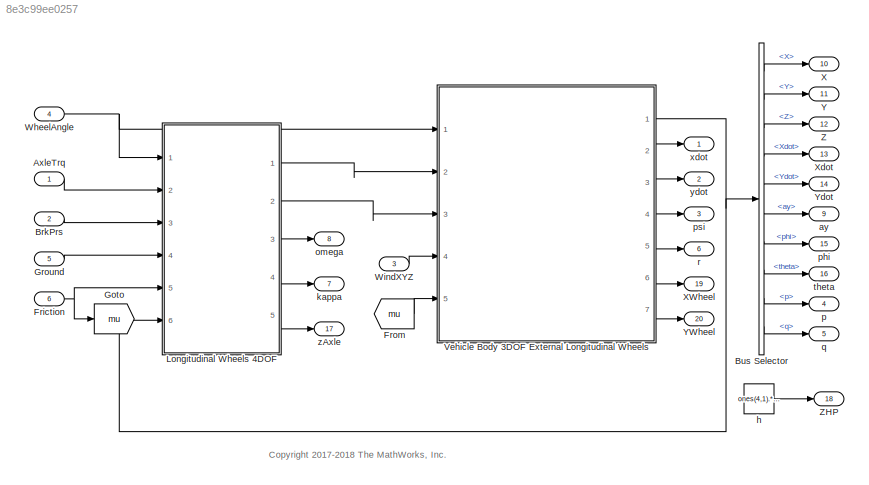
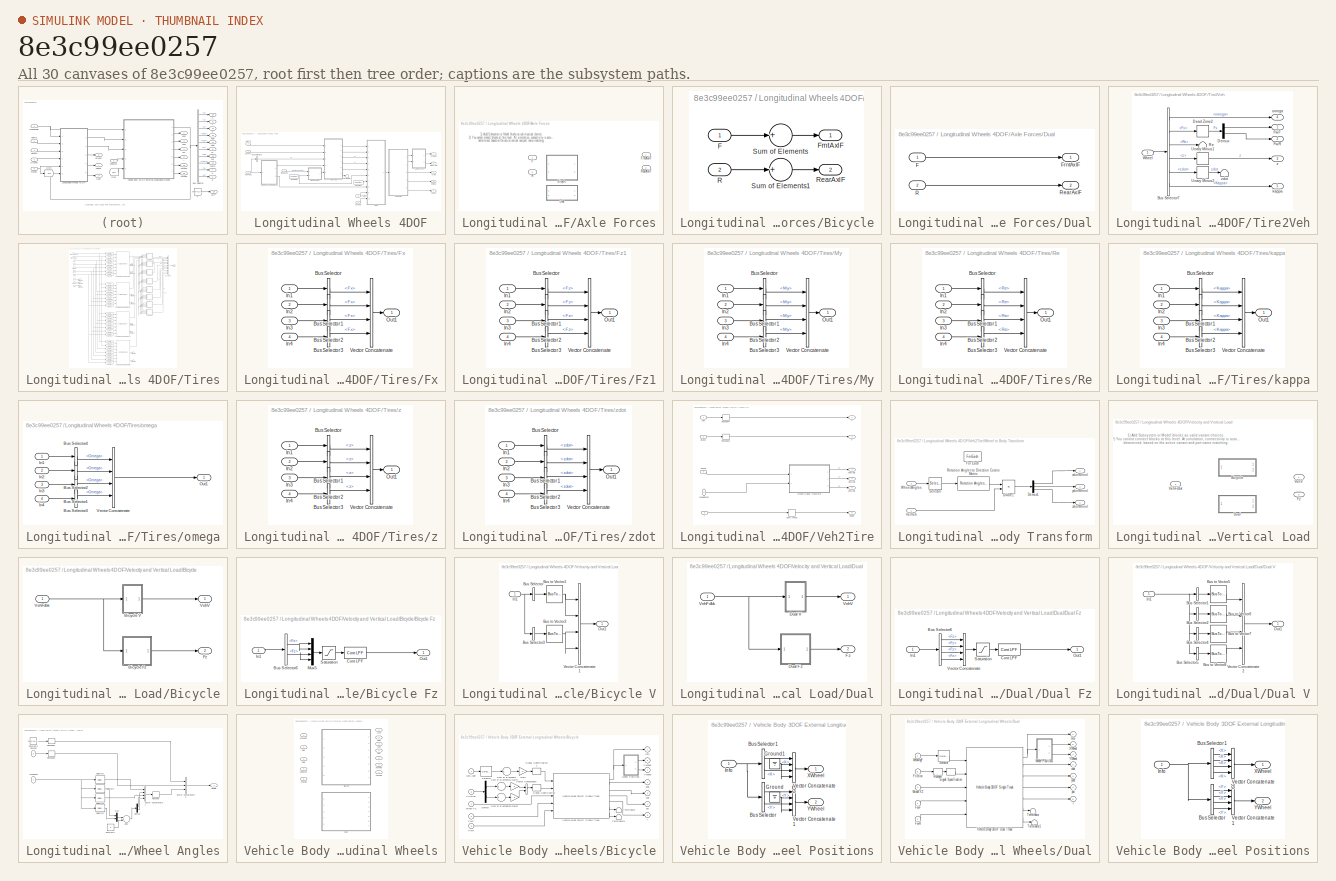
[diagram: thumbnail index - all 30 canvases of the model, root first then tree order]
MODEL slx_8e3c99ee0257
KIND model
CONFIG AbsTol = auto
CONFIG EnableMultiTasking = off
CONFIG FixedStep = 0.001
CONFIG MaxStep = auto
CONFIG MinStep = auto
CONFIG RelTol = 3e-3
CONFIG SampleTimeConstraint = Unconstrained
CONFIG Solver = FixedStepAuto
CONFIG SolverName = FixedStepAuto
CONFIG StartTime = 0.0
CONFIG StopTime = inf
WORKSPACE source: MAT-file member
WORKSPACE A_mu = 10
WORKSPACE Cps = 2
BLOCK [Inport] AxleTrq
  IconDisplay = Port number
  PortDimensions = 4
BLOCK [Inport] BrkPrs
  IconDisplay = Port number
  Port = 2
  PortDimensions = 4
BLOCK [BusSelector] Bus Selector
  OutputAsBus = off
  OutputSignals = InertFrm.Cg.Disp.X,InertFrm.Cg.Disp.Y,InertFrm.Cg.Disp.Z,InertFrm.Cg.Vel.Xdot,InertFrm.Cg.Vel.Ydot,BdyFrm.Cg.Acc.ay,InertFrm.Cg.Ang.phi,InertFrm.Cg.Ang.theta,BdyFrm.Cg.AngVel.p,BdyFrm.Cg.AngVel.q
  Ports = [1, 10]
BLOCK [Inport] Friction
  IconDisplay = Port number
  Port = 6
  PortDimensions = 4
  Unit = 1
BLOCK [From] From
  GotoTag = mu
BLOCK [Goto] Goto
  GotoTag = mu
BLOCK [Inport] Ground
  IconDisplay = Port number
  Port = 5
  PortDimensions = 4
BLOCK [SubSystem] Longitudinal Wheels 4DOF
  AttributesFormatString = %<wheelMode>
  Ports = [6, 5]
  RequestExecContextInheritance = off
  VariantControl = 1
BLOCK [SubSystem] Longitudinal Wheels 4DOF/Axle Forces
  OverrideUsingVariant = 0
  Ports = [2, 2]
  RequestExecContextInheritance = off
  Variant = on
BLOCK [SubSystem] Longitudinal Wheels 4DOF/Axle Forces/Bicycle
  Ports = [2, 2]
  RequestExecContextInheritance = off
  VariantControl = 0
BLOCK [Inport] Longitudinal Wheels 4DOF/Axle Forces/Bicycle/F
  IconDisplay = Port number
BLOCK [Outport] Longitudinal Wheels 4DOF/Axle Forces/Bicycle/FrntAxlF
  IconDisplay = Port number
  Unit = N
BLOCK [Inport] Longitudinal Wheels 4DOF/Axle Forces/Bicycle/R
  IconDisplay = Port number
  Port = 2
BLOCK [Outport] Longitudinal Wheels 4DOF/Axle Forces/Bicycle/RearAxlF
  IconDisplay = Port number
  Port = 2
  Unit = N
BLOCK [Sum] Longitudinal Wheels 4DOF/Axle Forces/Bicycle/Sum of Elements
  InputSameDT = off
  Inputs = +
  OutDataTypeStr = Inherit: Inherit via internal rule
  Ports = [1, 1]
  SaturateOnIntegerOverflow = off
BLOCK [Sum] Longitudinal Wheels 4DOF/Axle Forces/Bicycle/Sum of Elements1
  InputSameDT = off
  Inputs = +
  OutDataTypeStr = Inherit: Inherit via internal rule
  Ports = [1, 1]
  SaturateOnIntegerOverflow = off
BLOCK [SubSystem] Longitudinal Wheels 4DOF/Axle Forces/Dual
  Ports = [2, 2]
  RequestExecContextInheritance = off
  VariantControl = 1
BLOCK [Inport] Longitudinal Wheels 4DOF/Axle Forces/Dual/F
  IconDisplay = Port number
BLOCK [Outport] Longitudinal Wheels 4DOF/Axle Forces/Dual/FrntAxlF
  IconDisplay = Port number
  Unit = N
BLOCK [Inport] Longitudinal Wheels 4DOF/Axle Forces/Dual/R
  IconDisplay = Port number
  Port = 2
BLOCK [Outport] Longitudinal Wheels 4DOF/Axle Forces/Dual/RearAxlF
  IconDisplay = Port number
  Port = 2
  Unit = N
BLOCK [Inport] Longitudinal Wheels 4DOF/Axle Forces/F
  IconDisplay = Port number
BLOCK [Outport] Longitudinal Wheels 4DOF/Axle Forces/FrntAxlF
  IconDisplay = Port number
  Unit = N
BLOCK [Inport] Longitudinal Wheels 4DOF/Axle Forces/R
  IconDisplay = Port number
  Port = 2
BLOCK [Outport] Longitudinal Wheels 4DOF/Axle Forces/RearAxlF
  IconDisplay = Port number
  Port = 2
  Unit = N
BLOCK [Inport] Longitudinal Wheels 4DOF/AxleTrq
  IconDisplay = Port number
  Port = 2
BLOCK [Inport] Longitudinal Wheels 4DOF/BrkPrs
  IconDisplay = Port number
  Port = 3
BLOCK [BusSelector] Longitudinal Wheels 4DOF/Bus Selector5
  OutputAsBus = off
  OutputSignals = BdyFrm.Cg.AngVel.r
  Ports = [1, 1]
BLOCK [Reference] Longitudinal Wheels 4DOF/Constant  REF=vehdynlibtirecommon/Constant
  Ports = [0, 1]
  SourceBlock = vehdynlibtirecommon/Constant
BLOCK [Reference] Longitudinal Wheels 4DOF/Constant3  REF=vehdynlibtirecommon/Constant
  Ports = [0, 1]
  SourceBlock = vehdynlibtirecommon/Constant
BLOCK [Inport] Longitudinal Wheels 4DOF/Friction
  IconDisplay = Port number
  Port = 5
  PortDimensions = 4
BLOCK [Outport] Longitudinal Wheels 4DOF/FrntAxlF
  IconDisplay = Port number
  Unit = N
BLOCK [Inport] Longitudinal Wheels 4DOF/Ground
  IconDisplay = Port number
  Port = 4
  PortDimensions = 4
BLOCK [Outport] Longitudinal Wheels 4DOF/RearAxlF
  IconDisplay = Port number
  Port = 2
  Unit = N
BLOCK [Terminator] Longitudinal Wheels 4DOF/Terminator2
BLOCK [SubSystem] Longitudinal Wheels 4DOF/Tire2Veh
  Ports = [1, 5]
  RequestExecContextInheritance = off
BLOCK [BusSelector] Longitudinal Wheels 4DOF/Tire2Veh/Bus Selector7
  OutputAsBus = off
  OutputSignals = omega,Fx,Re,z,zdot,Kappa
  Ports = [1, 6]
BLOCK [DeadZone] Longitudinal Wheels 4DOF/Tire2Veh/Dead Zone2
  LowerValue = -5
  UpperValue = 5
  ZeroCross = off
BLOCK [Demux] Longitudinal Wheels 4DOF/Tire2Veh/Demux
  DisplayOption = bar
  Outputs = [2,2]
  Ports = [1, 2]
BLOCK [Outport] Longitudinal Wheels 4DOF/Tire2Veh/FwF
  IconDisplay = Port number
BLOCK [Outport] Longitudinal Wheels 4DOF/Tire2Veh/FwR
  IconDisplay = Port number
  Port = 2
BLOCK [Terminator] Longitudinal Wheels 4DOF/Tire2Veh/Re
BLOCK [UnaryMinus] Longitudinal Wheels 4DOF/Tire2Veh/Unary Minus1
BLOCK [UnaryMinus] Longitudinal Wheels 4DOF/Tire2Veh/Unary Minus2
BLOCK [Inport] Longitudinal Wheels 4DOF/Tire2Veh/Wheel
  IconDisplay = Port number
BLOCK [Outport] Longitudinal Wheels 4DOF/Tire2Veh/kappa
  IconDisplay = Port number
  Port = 5
BLOCK [Outport] Longitudinal Wheels 4DOF/Tire2Veh/omega
  IconDisplay = Port number
  Port = 4
BLOCK [Outport] Longitudinal Wheels 4DOF/Tire2Veh/z
  IconDisplay = Port number
  Port = 3
BLOCK [Terminator] Longitudinal Wheels 4DOF/Tire2Veh/zdot
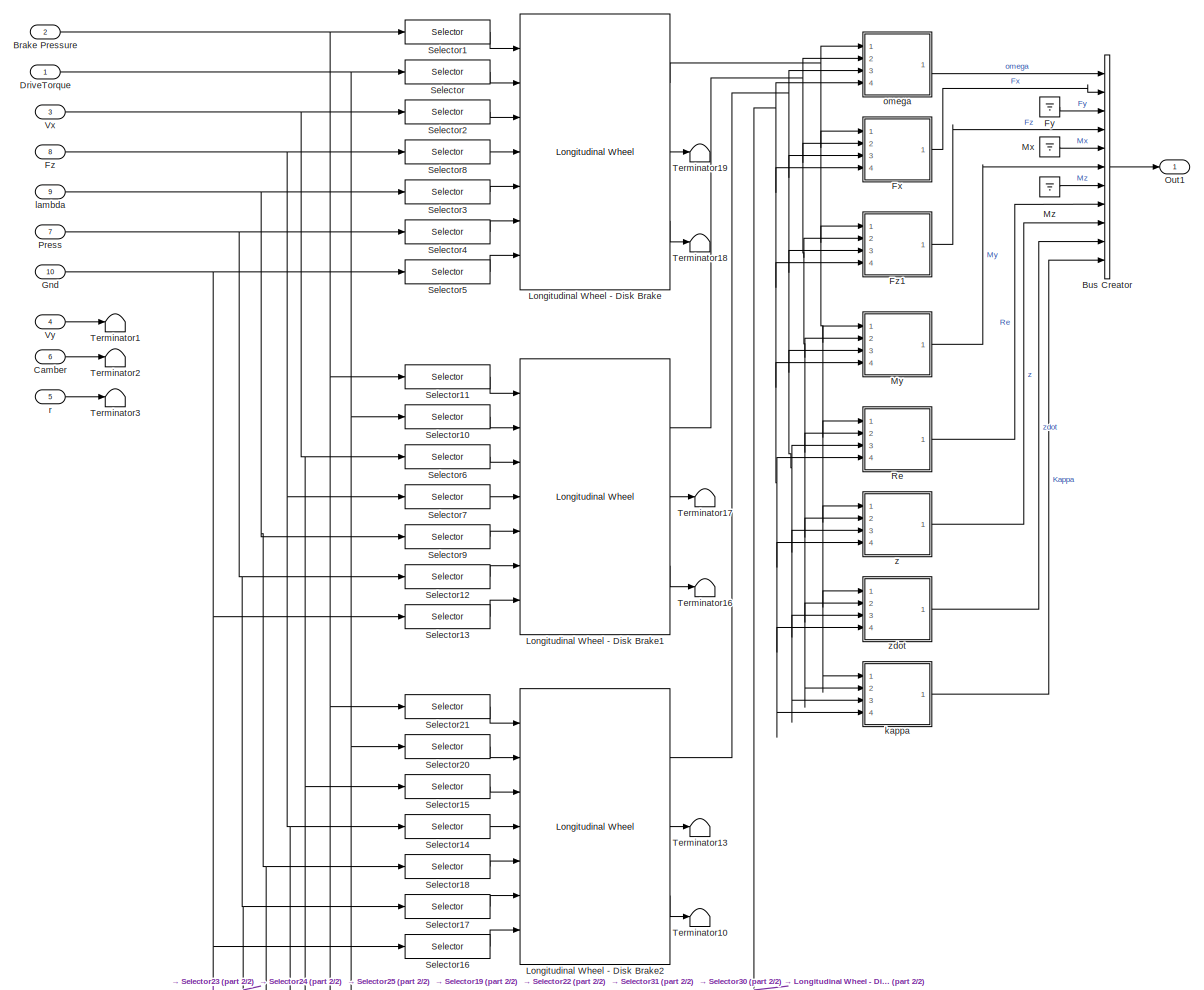
[diagram: Longitudinal Wheels 4DOF/Tires - part 1/2, most of the canvas]
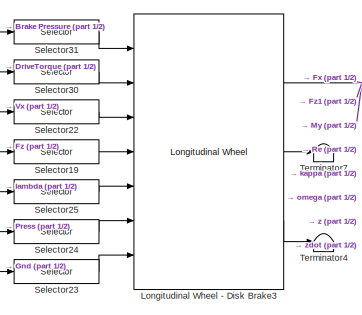
[diagram: Longitudinal Wheels 4DOF/Tires - part 2/2, bottom center region]
BLOCK [SubSystem] Longitudinal Wheels 4DOF/Tires
  Ports = [10, 1]
  RequestExecContextInheritance = off
BLOCK [Inport] Longitudinal Wheels 4DOF/Tires/Brake Pressure
  IconDisplay = Port number
  Port = 2
BLOCK [BusCreator] Longitudinal Wheels 4DOF/Tires/Bus Creator
  DisplayOption = bar
  InheritFromInputs = on
  Inputs = 11
  Ports = [11, 1]
BLOCK [Inport] Longitudinal Wheels 4DOF/Tires/Camber
  IconDisplay = Port number
  Port = 6
BLOCK [Inport] Longitudinal Wheels 4DOF/Tires/DriveTorque
  IconDisplay = Port number
BLOCK [SubSystem] Longitudinal Wheels 4DOF/Tires/Fx
  Ports = [4, 1]
  RequestExecContextInheritance = off
BLOCK [BusSelector] Longitudinal Wheels 4DOF/Tires/Fx/Bus Selector
  OutputAsBus = off
  OutputSignals = Fx
  Ports = [1, 1]
BLOCK [BusSelector] Longitudinal Wheels 4DOF/Tires/Fx/Bus Selector1
  OutputAsBus = off
  OutputSignals = Fx
  Ports = [1, 1]
BLOCK [BusSelector] Longitudinal Wheels 4DOF/Tires/Fx/Bus Selector2
  OutputAsBus = off
  OutputSignals = Fx
  Ports = [1, 1]
BLOCK [BusSelector] Longitudinal Wheels 4DOF/Tires/Fx/Bus Selector3
  OutputAsBus = off
  OutputSignals = Fx
  Ports = [1, 1]
BLOCK [Inport] Longitudinal Wheels 4DOF/Tires/Fx/In1
  IconDisplay = Port number
BLOCK [Inport] Longitudinal Wheels 4DOF/Tires/Fx/In2
  IconDisplay = Port number
  Port = 2
BLOCK [Inport] Longitudinal Wheels 4DOF/Tires/Fx/In3
  IconDisplay = Port number
  Port = 3
BLOCK [Inport] Longitudinal Wheels 4DOF/Tires/Fx/In4
  IconDisplay = Port number
  Port = 4
BLOCK [Outport] Longitudinal Wheels 4DOF/Tires/Fx/Out1
  IconDisplay = Port number
BLOCK [Concatenate] Longitudinal Wheels 4DOF/Tires/Fx/Vector Concatenate
  NumInputs = 4
  Ports = [4, 1]
BLOCK [Ground] Longitudinal Wheels 4DOF/Tires/Fy
BLOCK [Inport] Longitudinal Wheels 4DOF/Tires/Fz
  IconDisplay = Port number
  Port = 8
BLOCK [SubSystem] Longitudinal Wheels 4DOF/Tires/Fz1
  Ports = [4, 1]
  RequestExecContextInheritance = off
BLOCK [BusSelector] Longitudinal Wheels 4DOF/Tires/Fz1/Bus Selector
  OutputAsBus = off
  OutputSignals = Fz
  Ports = [1, 1]
BLOCK [BusSelector] Longitudinal Wheels 4DOF/Tires/Fz1/Bus Selector1
  OutputAsBus = off
  OutputSignals = Fz
  Ports = [1, 1]
BLOCK [BusSelector] Longitudinal Wheels 4DOF/Tires/Fz1/Bus Selector2
  OutputAsBus = off
  OutputSignals = Fz
  Ports = [1, 1]
BLOCK [BusSelector] Longitudinal Wheels 4DOF/Tires/Fz1/Bus Selector3
  OutputAsBus = off
  OutputSignals = Fz
  Ports = [1, 1]
BLOCK [Inport] Longitudinal Wheels 4DOF/Tires/Fz1/In1
  IconDisplay = Port number
BLOCK [Inport] Longitudinal Wheels 4DOF/Tires/Fz1/In2
  IconDisplay = Port number
  Port = 2
BLOCK [Inport] Longitudinal Wheels 4DOF/Tires/Fz1/In3
  IconDisplay = Port number
  Port = 3
BLOCK [Inport] Longitudinal Wheels 4DOF/Tires/Fz1/In4
  IconDisplay = Port number
  Port = 4
BLOCK [Outport] Longitudinal Wheels 4DOF/Tires/Fz1/Out1
  IconDisplay = Port number
BLOCK [Concatenate] Longitudinal Wheels 4DOF/Tires/Fz1/Vector Concatenate
  NumInputs = 4
  Ports = [4, 1]
BLOCK [Inport] Longitudinal Wheels 4DOF/Tires/Gnd
  IconDisplay = Port number
  Port = 10
BLOCK [Reference] Longitudinal Wheels 4DOF/Tires/Longitudinal Wheel - Disk Brake  REF=autolibshared/Longitudinal Wheel
  AttributesFormatString = Fx Type: %<FxType>\nRolling Type: %<rollingType>
  Ports = [7, 3]
  SourceBlock = autolibshared/Longitudinal Wheel
  SourceProductBaseCode = PW
  SourceProductName = Powertrain Blockset
  SourceType = Longitudinal Wheel
BLOCK [Reference] Longitudinal Wheels 4DOF/Tires/Longitudinal Wheel - Disk Brake1  REF=autolibshared/Longitudinal Wheel
  AttributesFormatString = Fx Type: %<FxType>\nRolling Type: %<rollingType>
  Ports = [7, 3]
  SourceBlock = autolibshared/Longitudinal Wheel
  SourceProductBaseCode = PW
  SourceProductName = Powertrain Blockset
  SourceType = Longitudinal Wheel
BLOCK [Reference] Longitudinal Wheels 4DOF/Tires/Longitudinal Wheel - Disk Brake2  REF=autolibshared/Longitudinal Wheel
  AttributesFormatString = Fx Type: %<FxType>\nRolling Type: %<rollingType>
  Ports = [7, 3]
  SourceBlock = autolibshared/Longitudinal Wheel
  SourceProductBaseCode = PW
  SourceProductName = Powertrain Blockset
  SourceType = Longitudinal Wheel
BLOCK [Reference] Longitudinal Wheels 4DOF/Tires/Longitudinal Wheel - Disk Brake3  REF=autolibshared/Longitudinal Wheel
  AttributesFormatString = Fx Type: %<FxType>\nRolling Type: %<rollingType>
  Ports = [7, 3]
  SourceBlock = autolibshared/Longitudinal Wheel
  SourceProductBaseCode = PW
  SourceProductName = Powertrain Blockset
  SourceType = Longitudinal Wheel
BLOCK [Ground] Longitudinal Wheels 4DOF/Tires/Mx
BLOCK [SubSystem] Longitudinal Wheels 4DOF/Tires/My
  Ports = [4, 1]
  RequestExecContextInheritance = off
BLOCK [BusSelector] Longitudinal Wheels 4DOF/Tires/My/Bus Selector
  OutputAsBus = off
  OutputSignals = My
  Ports = [1, 1]
BLOCK [BusSelector] Longitudinal Wheels 4DOF/Tires/My/Bus Selector1
  OutputAsBus = off
  OutputSignals = My
  Ports = [1, 1]
BLOCK [BusSelector] Longitudinal Wheels 4DOF/Tires/My/Bus Selector2
  OutputAsBus = off
  OutputSignals = My
  Ports = [1, 1]
BLOCK [BusSelector] Longitudinal Wheels 4DOF/Tires/My/Bus Selector3
  OutputAsBus = off
  OutputSignals = My
  Ports = [1, 1]
BLOCK [Inport] Longitudinal Wheels 4DOF/Tires/My/In1
  IconDisplay = Port number
BLOCK [Inport] Longitudinal Wheels 4DOF/Tires/My/In2
  IconDisplay = Port number
  Port = 2
BLOCK [Inport] Longitudinal Wheels 4DOF/Tires/My/In3
  IconDisplay = Port number
  Port = 3
BLOCK [Inport] Longitudinal Wheels 4DOF/Tires/My/In4
  IconDisplay = Port number
  Port = 4
BLOCK [Outport] Longitudinal Wheels 4DOF/Tires/My/Out1
  IconDisplay = Port number
  PortDimensions = 4
BLOCK [Concatenate] Longitudinal Wheels 4DOF/Tires/My/Vector Concatenate
  NumInputs = 4
  Ports = [4, 1]
BLOCK [Ground] Longitudinal Wheels 4DOF/Tires/Mz
BLOCK [Outport] Longitudinal Wheels 4DOF/Tires/Out1
  IconDisplay = Port number
BLOCK [Inport] Longitudinal Wheels 4DOF/Tires/Press
  IconDisplay = Port number
  Port = 7
BLOCK [SubSystem] Longitudinal Wheels 4DOF/Tires/Re
  Ports = [4, 1]
  RequestExecContextInheritance = off
BLOCK [BusSelector] Longitudinal Wheels 4DOF/Tires/Re/Bus Selector
  OutputAsBus = off
  OutputSignals = Re
  Ports = [1, 1]
BLOCK [BusSelector] Longitudinal Wheels 4DOF/Tires/Re/Bus Selector1
  OutputAsBus = off
  OutputSignals = Re
  Ports = [1, 1]
BLOCK [BusSelector] Longitudinal Wheels 4DOF/Tires/Re/Bus Selector2
  OutputAsBus = off
  OutputSignals = Re
  Ports = [1, 1]
BLOCK [BusSelector] Longitudinal Wheels 4DOF/Tires/Re/Bus Selector3
  OutputAsBus = off
  OutputSignals = Re
  Ports = [1, 1]
BLOCK [Inport] Longitudinal Wheels 4DOF/Tires/Re/In1
  IconDisplay = Port number
BLOCK [Inport] Longitudinal Wheels 4DOF/Tires/Re/In2
  IconDisplay = Port number
  Port = 2
BLOCK [Inport] Longitudinal Wheels 4DOF/Tires/Re/In3
  IconDisplay = Port number
  Port = 3
BLOCK [Inport] Longitudinal Wheels 4DOF/Tires/Re/In4
  IconDisplay = Port number
  Port = 4
BLOCK [Outport] Longitudinal Wheels 4DOF/Tires/Re/Out1
  IconDisplay = Port number
  PortDimensions = 4
BLOCK [Concatenate] Longitudinal Wheels 4DOF/Tires/Re/Vector Concatenate
  NumInputs = 4
  Ports = [4, 1]
BLOCK [Selector] Longitudinal Wheels 4DOF/Tires/Selector
  IndexOptions = Index vector (dialog)
  Indices = 1
  InputPortWidth = 4
  OutputSizes = 1
  Ports = [1, 1]
BLOCK [Selector] Longitudinal Wheels 4DOF/Tires/Selector1
  IndexOptions = Index vector (dialog)
  Indices = 1
  InputPortWidth = 4
  OutputSizes = 1
  Ports = [1, 1]
BLOCK [Selector] Longitudinal Wheels 4DOF/Tires/Selector10
  IndexOptions = Index vector (dialog)
  Indices = 2
  InputPortWidth = 4
  OutputSizes = 1
  Ports = [1, 1]
BLOCK [Selector] Longitudinal Wheels 4DOF/Tires/Selector11
  IndexOptions = Index vector (dialog)
  Indices = 2
  InputPortWidth = 4
  OutputSizes = 1
  Ports = [1, 1]
BLOCK [Selector] Longitudinal Wheels 4DOF/Tires/Selector12
  IndexOptions = Index vector (dialog)
  Indices = 2
  InputPortWidth = 4
  OutputSizes = 1
  Ports = [1, 1]
BLOCK [Selector] Longitudinal Wheels 4DOF/Tires/Selector13
  IndexOptions = Index vector (dialog)
  Indices = 2
  InputPortWidth = 4
  OutputSizes = 1
  Ports = [1, 1]
BLOCK [Selector] Longitudinal Wheels 4DOF/Tires/Selector14
  IndexOptions = Index vector (dialog)
  Indices = 3
  InputPortWidth = 4
  OutputSizes = 1
  Ports = [1, 1]
BLOCK [Selector] Longitudinal Wheels 4DOF/Tires/Selector15
  IndexOptions = Index vector (dialog)
  Indices = 3
  InputPortWidth = 4
  OutputSizes = 1
  Ports = [1, 1]
BLOCK [Selector] Longitudinal Wheels 4DOF/Tires/Selector16
  IndexOptions = Index vector (dialog)
  Indices = 3
  InputPortWidth = 4
  OutputSizes = 1
  Ports = [1, 1]
BLOCK [Selector] Longitudinal Wheels 4DOF/Tires/Selector17
  IndexOptions = Index vector (dialog)
  Indices = 3
  InputPortWidth = 4
  OutputSizes = 1
  Ports = [1, 1]
BLOCK [Selector] Longitudinal Wheels 4DOF/Tires/Selector18
  IndexOptions = Index vector (dialog)
  Indices = 3
  InputPortWidth = 4
  OutputSizes = 1
  Ports = [1, 1]
BLOCK [Selector] Longitudinal Wheels 4DOF/Tires/Selector19
  IndexOptions = Index vector (dialog)
  Indices = 4
  InputPortWidth = 4
  OutputSizes = 1
  Ports = [1, 1]
BLOCK [Selector] Longitudinal Wheels 4DOF/Tires/Selector2
  IndexOptions = Index vector (dialog)
  Indices = 1
  InputPortWidth = 4
  OutputSizes = 1
  Ports = [1, 1]
BLOCK [Selector] Longitudinal Wheels 4DOF/Tires/Selector20
  IndexOptions = Index vector (dialog)
  Indices = 3
  InputPortWidth = 4
  OutputSizes = 1
  Ports = [1, 1]
BLOCK [Selector] Longitudinal Wheels 4DOF/Tires/Selector21
  IndexOptions = Index vector (dialog)
  Indices = 3
  InputPortWidth = 4
  OutputSizes = 1
  Ports = [1, 1]
BLOCK [Selector] Longitudinal Wheels 4DOF/Tires/Selector22
  IndexOptions = Index vector (dialog)
  Indices = 4
  InputPortWidth = 4
  OutputSizes = 1
  Ports = [1, 1]
BLOCK [Selector] Longitudinal Wheels 4DOF/Tires/Selector23
  IndexOptions = Index vector (dialog)
  Indices = 4
  InputPortWidth = 4
  OutputSizes = 1
  Ports = [1, 1]
BLOCK [Selector] Longitudinal Wheels 4DOF/Tires/Selector24
  IndexOptions = Index vector (dialog)
  Indices = 4
  InputPortWidth = 4
  OutputSizes = 1
  Ports = [1, 1]
BLOCK [Selector] Longitudinal Wheels 4DOF/Tires/Selector25
  IndexOptions = Index vector (dialog)
  Indices = 4
  InputPortWidth = 4
  OutputSizes = 1
  Ports = [1, 1]
BLOCK [Selector] Longitudinal Wheels 4DOF/Tires/Selector3
  IndexOptions = Index vector (dialog)
  Indices = 1
  InputPortWidth = 4
  OutputSizes = 1
  Ports = [1, 1]
BLOCK [Selector] Longitudinal Wheels 4DOF/Tires/Selector30
  IndexOptions = Index vector (dialog)
  Indices = 4
  InputPortWidth = 4
  OutputSizes = 1
  Ports = [1, 1]
BLOCK [Selector] Longitudinal Wheels 4DOF/Tires/Selector31
  IndexOptions = Index vector (dialog)
  Indices = 4
  InputPortWidth = 4
  OutputSizes = 1
  Ports = [1, 1]
BLOCK [Selector] Longitudinal Wheels 4DOF/Tires/Selector4
  IndexOptions = Index vector (dialog)
  Indices = 1
  InputPortWidth = 4
  OutputSizes = 1
  Ports = [1, 1]
BLOCK [Selector] Longitudinal Wheels 4DOF/Tires/Selector5
  IndexOptions = Index vector (dialog)
  Indices = 1
  InputPortWidth = 4
  OutputSizes = 1
  Ports = [1, 1]
BLOCK [Selector] Longitudinal Wheels 4DOF/Tires/Selector6
  IndexOptions = Index vector (dialog)
  Indices = 2
  InputPortWidth = 4
  OutputSizes = 1
  Ports = [1, 1]
BLOCK [Selector] Longitudinal Wheels 4DOF/Tires/Selector7
  IndexOptions = Index vector (dialog)
  Indices = 2
  InputPortWidth = 4
  OutputSizes = 1
  Ports = [1, 1]
BLOCK [Selector] Longitudinal Wheels 4DOF/Tires/Selector8
  IndexOptions = Index vector (dialog)
  Indices = 1
  InputPortWidth = 4
  OutputSizes = 1
  Ports = [1, 1]
BLOCK [Selector] Longitudinal Wheels 4DOF/Tires/Selector9
  IndexOptions = Index vector (dialog)
  Indices = 2
  InputPortWidth = 4
  OutputSizes = 1
  Ports = [1, 1]
BLOCK [Terminator] Longitudinal Wheels 4DOF/Tires/Terminator1
BLOCK [Terminator] Longitudinal Wheels 4DOF/Tires/Terminator10
BLOCK [Terminator] Longitudinal Wheels 4DOF/Tires/Terminator13
BLOCK [Terminator] Longitudinal Wheels 4DOF/Tires/Terminator16
BLOCK [Terminator] Longitudinal Wheels 4DOF/Tires/Terminator17
BLOCK [Terminator] Longitudinal Wheels 4DOF/Tires/Terminator18
BLOCK [Terminator] Longitudinal Wheels 4DOF/Tires/Terminator19
BLOCK [Terminator] Longitudinal Wheels 4DOF/Tires/Terminator2
BLOCK [Terminator] Longitudinal Wheels 4DOF/Tires/Terminator3
BLOCK [Terminator] Longitudinal Wheels 4DOF/Tires/Terminator4
BLOCK [Terminator] Longitudinal Wheels 4DOF/Tires/Terminator7
BLOCK [Inport] Longitudinal Wheels 4DOF/Tires/Vx
  IconDisplay = Port number
  Port = 3
BLOCK [Inport] Longitudinal Wheels 4DOF/Tires/Vy
  IconDisplay = Port number
  Port = 4
BLOCK [SubSystem] Longitudinal Wheels 4DOF/Tires/kappa
  Ports = [4, 1]
  RequestExecContextInheritance = off
BLOCK [BusSelector] Longitudinal Wheels 4DOF/Tires/kappa/Bus Selector
  OutputAsBus = off
  OutputSignals = Kappa
  Ports = [1, 1]
BLOCK [BusSelector] Longitudinal Wheels 4DOF/Tires/kappa/Bus Selector1
  OutputAsBus = off
  OutputSignals = Kappa
  Ports = [1, 1]
BLOCK [BusSelector] Longitudinal Wheels 4DOF/Tires/kappa/Bus Selector2
  OutputAsBus = off
  OutputSignals = Kappa
  Ports = [1, 1]
BLOCK [BusSelector] Longitudinal Wheels 4DOF/Tires/kappa/Bus Selector3
  OutputAsBus = off
  OutputSignals = Kappa
  Ports = [1, 1]
BLOCK [Inport] Longitudinal Wheels 4DOF/Tires/kappa/In1
  IconDisplay = Port number
BLOCK [Inport] Longitudinal Wheels 4DOF/Tires/kappa/In2
  IconDisplay = Port number
  Port = 2
BLOCK [Inport] Longitudinal Wheels 4DOF/Tires/kappa/In3
  IconDisplay = Port number
  Port = 3
BLOCK [Inport] Longitudinal Wheels 4DOF/Tires/kappa/In4
  IconDisplay = Port number
  Port = 4
BLOCK [Outport] Longitudinal Wheels 4DOF/Tires/kappa/Out1
  IconDisplay = Port number
  PortDimensions = 4
BLOCK [Concatenate] Longitudinal Wheels 4DOF/Tires/kappa/Vector Concatenate
  NumInputs = 4
  Ports = [4, 1]
BLOCK [Inport] Longitudinal Wheels 4DOF/Tires/lambda
  IconDisplay = Port number
  Port = 9
BLOCK [SubSystem] Longitudinal Wheels 4DOF/Tires/omega
  Ports = [4, 1]
  RequestExecContextInheritance = off
BLOCK [BusSelector] Longitudinal Wheels 4DOF/Tires/omega/Bus Selector1
  OutputAsBus = off
  OutputSignals = Omega
  Ports = [1, 1]
BLOCK [BusSelector] Longitudinal Wheels 4DOF/Tires/omega/Bus Selector2
  OutputAsBus = off
  OutputSignals = Omega
  Ports = [1, 1]
BLOCK [BusSelector] Longitudinal Wheels 4DOF/Tires/omega/Bus Selector3
  OutputAsBus = off
  OutputSignals = Omega
  Ports = [1, 1]
BLOCK [BusSelector] Longitudinal Wheels 4DOF/Tires/omega/Bus Selector4
  OutputAsBus = off
  OutputSignals = Omega
  Ports = [1, 1]
BLOCK [Inport] Longitudinal Wheels 4DOF/Tires/omega/In1
  IconDisplay = Port number
BLOCK [Inport] Longitudinal Wheels 4DOF/Tires/omega/In2
  IconDisplay = Port number
  Port = 2
BLOCK [Inport] Longitudinal Wheels 4DOF/Tires/omega/In3
  IconDisplay = Port number
  Port = 3
BLOCK [Inport] Longitudinal Wheels 4DOF/Tires/omega/In4
  IconDisplay = Port number
  Port = 4
BLOCK [Outport] Longitudinal Wheels 4DOF/Tires/omega/Out1
  IconDisplay = Port number
BLOCK [Concatenate] Longitudinal Wheels 4DOF/Tires/omega/Vector Concatenate
  NumInputs = 4
  Ports = [4, 1]
BLOCK [Inport] Longitudinal Wheels 4DOF/Tires/r
  IconDisplay = Port number
  Port = 5
BLOCK [SubSystem] Longitudinal Wheels 4DOF/Tires/z
  Ports = [4, 1]
  RequestExecContextInheritance = off
BLOCK [BusSelector] Longitudinal Wheels 4DOF/Tires/z/Bus Selector
  OutputAsBus = off
  OutputSignals = z
  Ports = [1, 1]
BLOCK [BusSelector] Longitudinal Wheels 4DOF/Tires/z/Bus Selector1
  OutputAsBus = off
  OutputSignals = z
  Ports = [1, 1]
BLOCK [BusSelector] Longitudinal Wheels 4DOF/Tires/z/Bus Selector2
  OutputAsBus = off
  OutputSignals = z
  Ports = [1, 1]
BLOCK [BusSelector] Longitudinal Wheels 4DOF/Tires/z/Bus Selector3
  OutputAsBus = off
  OutputSignals = z
  Ports = [1, 1]
BLOCK [Inport] Longitudinal Wheels 4DOF/Tires/z/In1
  IconDisplay = Port number
BLOCK [Inport] Longitudinal Wheels 4DOF/Tires/z/In2
  IconDisplay = Port number
  Port = 2
BLOCK [Inport] Longitudinal Wheels 4DOF/Tires/z/In3
  IconDisplay = Port number
  Port = 3
BLOCK [Inport] Longitudinal Wheels 4DOF/Tires/z/In4
  IconDisplay = Port number
  Port = 4
BLOCK [Outport] Longitudinal Wheels 4DOF/Tires/z/Out1
  IconDisplay = Port number
  PortDimensions = 4
BLOCK [Concatenate] Longitudinal Wheels 4DOF/Tires/z/Vector Concatenate
  NumInputs = 4
  Ports = [4, 1]
BLOCK [SubSystem] Longitudinal Wheels 4DOF/Tires/zdot
  Ports = [4, 1]
  RequestExecContextInheritance = off
BLOCK [BusSelector] Longitudinal Wheels 4DOF/Tires/zdot/Bus Selector
  OutputAsBus = off
  OutputSignals = zdot
  Ports = [1, 1]
BLOCK [BusSelector] Longitudinal Wheels 4DOF/Tires/zdot/Bus Selector1
  OutputAsBus = off
  OutputSignals = zdot
  Ports = [1, 1]
BLOCK [BusSelector] Longitudinal Wheels 4DOF/Tires/zdot/Bus Selector2
  OutputAsBus = off
  OutputSignals = zdot
  Ports = [1, 1]
BLOCK [BusSelector] Longitudinal Wheels 4DOF/Tires/zdot/Bus Selector3
  OutputAsBus = off
  OutputSignals = zdot
  Ports = [1, 1]
BLOCK [Inport] Longitudinal Wheels 4DOF/Tires/zdot/In1
  IconDisplay = Port number
BLOCK [Inport] Longitudinal Wheels 4DOF/Tires/zdot/In2
  IconDisplay = Port number
  Port = 2
BLOCK [Inport] Longitudinal Wheels 4DOF/Tires/zdot/In3
  IconDisplay = Port number
  Port = 3
BLOCK [Inport] Longitudinal Wheels 4DOF/Tires/zdot/In4
  IconDisplay = Port number
  Port = 4
BLOCK [Outport] Longitudinal Wheels 4DOF/Tires/zdot/Out1
  IconDisplay = Port number
  PortDimensions = 4
BLOCK [Concatenate] Longitudinal Wheels 4DOF/Tires/zdot/Vector Concatenate
  NumInputs = 4
  Ports = [4, 1]
BLOCK [SubSystem] Longitudinal Wheels 4DOF/Veh2Tire
  Ports = [5, 6]
  RequestExecContextInheritance = off
BLOCK [Inport] Longitudinal Wheels 4DOF/Veh2Tire/Axle
  IconDisplay = Port number
BLOCK [Inport] Longitudinal Wheels 4DOF/Veh2Tire/Brake
  IconDisplay = Port number
  Port = 2
BLOCK [Outport] Longitudinal Wheels 4DOF/Veh2Tire/P
  IconDisplay = Port number
  Port = 2
BLOCK [Reshape] Longitudinal Wheels 4DOF/Veh2Tire/Reshape3
  Ports = [1, 1]
BLOCK [Reshape] Longitudinal Wheels 4DOF/Veh2Tire/Reshape4
  Ports = [1, 1]
BLOCK [Outport] Longitudinal Wheels 4DOF/Veh2Tire/T
  IconDisplay = Port number
BLOCK [UnaryMinus] Longitudinal Wheels 4DOF/Veh2Tire/Unary Minus
BLOCK [Inport] Longitudinal Wheels 4DOF/Veh2Tire/VehVel
  IconDisplay = Port number
  Port = 4
BLOCK [SubSystem] Longitudinal Wheels 4DOF/Veh2Tire/Wheel to Body Transform
  Ports = [2, 3]
  RequestExecContextInheritance = off
BLOCK [Demux] Longitudinal Wheels 4DOF/Veh2Tire/Wheel to Body Transform/Demux1
  DisplayOption = bar
  Outputs = 3
  Ports = [1, 3]
BLOCK [Product] Longitudinal Wheels 4DOF/Veh2Tire/Wheel to Body Transform/Divide1
  InputSameDT = off
  Inputs = **
  Multiplication = Matrix(*)
  OutDataTypeStr = Inherit: Inherit via internal rule
  Ports = [2, 1]
  RndMeth = Floor
  SaturateOnIntegerOverflow = off
BLOCK [ForEach] Longitudinal Wheels 4DOF/Veh2Tire/Wheel to Body Transform/For Each
  DisableCoverage = on
  IndexMode = One-based
  Ports = []
BLOCK [Reference] Longitudinal Wheels 4DOF/Veh2Tire/Wheel to Body Transform/Rotation Angles to Direction Cosine Matrix  REF=sharedtransform/Rotation Angles to
Direction Cosine Matrix
  AttributesFormatString = Rotation Order: %<rotationOrder>
  Ports = [1, 1]
  SourceBlock = sharedtransform/Rotation Angles to\nDirection Cosine Matrix
  SourceProductBaseCode = AE
  SourceProductName = Aerospace Blockset
  SourceType = Ang2DCM
BLOCK [Selector] Longitudinal Wheels 4DOF/Veh2Tire/Wheel to Body Transform/Selector
  IndexOptions = Index vector (dialog)
  Indices = [3 2 1]
  InputPortWidth = 3
  OutputSizes = 1
  Ports = [1, 1]
BLOCK [Inport] Longitudinal Wheels 4DOF/Veh2Tire/Wheel to Body Transform/VelVeh
  IconDisplay = Port number
  Partition = on
  PartitionDimension = 2
  PartitionOffset = 0
  PartitionWidth = 1
BLOCK [Inport] Longitudinal Wheels 4DOF/Veh2Tire/Wheel to Body Transform/WheelAngles
  IconDisplay = Port number
  Partition = on
  PartitionDimension = 2
  PartitionOffset = 0
  PartitionWidth = 1
  Port = 2
BLOCK [Outport] Longitudinal Wheels 4DOF/Veh2Tire/Wheel to Body Transform/xdotWheel
  ConcatenationDimension = 1
  IconDisplay = Port number
BLOCK [Outport] Longitudinal Wheels 4DOF/Veh2Tire/Wheel to Body Transform/ydotWheel
  ConcatenationDimension = 1
  IconDisplay = Port number
  Port = 2
BLOCK [Outport] Longitudinal Wheels 4DOF/Veh2Tire/Wheel to Body Transform/zdotWheel
  ConcatenationDimension = 1
  IconDisplay = Port number
  Port = 3
BLOCK [Inport] Longitudinal Wheels 4DOF/Veh2Tire/WheelSteer
  IconDisplay = Port number
  Port = 5
BLOCK [Outport] Longitudinal Wheels 4DOF/Veh2Tire/psidot
  IconDisplay = Port number
  Port = 5
BLOCK [Inport] Longitudinal Wheels 4DOF/Veh2Tire/r
  IconDisplay = Port number
  Port = 3
BLOCK [Outport] Longitudinal Wheels 4DOF/Veh2Tire/xdotAxle
  IconDisplay = Port number
  Port = 3
BLOCK [Outport] Longitudinal Wheels 4DOF/Veh2Tire/ydotAxle
  IconDisplay = Port number
  Port = 4
BLOCK [Outport] Longitudinal Wheels 4DOF/Veh2Tire/zdotAxle
  IconDisplay = Port number
  Port = 6
BLOCK [Inport] Longitudinal Wheels 4DOF/VehFdbk
  IconDisplay = Port number
  Port = 6
BLOCK [SubSystem] Longitudinal Wheels 4DOF/Velocity and Vertical Load
  OverrideUsingVariant = 0
  Ports = [1, 2]
  RequestExecContextInheritance = off
  Variant = on
BLOCK [SubSystem] Longitudinal Wheels 4DOF/Velocity and Vertical Load/Bicycle
  Ports = [1, 2]
  RequestExecContextInheritance = off
  VariantControl = 0
BLOCK [SubSystem] Longitudinal Wheels 4DOF/Velocity and Vertical Load/Bicycle/Bicycle Fz
  Ports = [1, 1]
  RequestExecContextInheritance = off
BLOCK [BusSelector] Longitudinal Wheels 4DOF/Velocity and Vertical Load/Bicycle/Bicycle Fz/Bus Selector6
  OutputAsBus = off
  OutputSignals = BdyFrm.Forces.Tires.FrntTire.Fz,BdyFrm.Forces.Tires.RearTire.Fz
  Ports = [1, 2]
BLOCK [Reference] Longitudinal Wheels 4DOF/Velocity and Vertical Load/Bicycle/Bicycle Fz/Cont LPF  REF=autolibutils/Cont LPF
  Ports = [1, 1]
  SourceBlock = autolibutils/Cont LPF
  SourceProductBaseCode = PW
  SourceProductName = Powertrain Blockset
BLOCK [Inport] Longitudinal Wheels 4DOF/Velocity and Vertical Load/Bicycle/Bicycle Fz/In1
  IconDisplay = Port number
BLOCK [Mux] Longitudinal Wheels 4DOF/Velocity and Vertical Load/Bicycle/Bicycle Fz/Mux5
  DisplayOption = bar
  Ports = [4, 1]
BLOCK [Outport] Longitudinal Wheels 4DOF/Velocity and Vertical Load/Bicycle/Bicycle Fz/Out1
  IconDisplay = Port number
BLOCK [Saturate] Longitudinal Wheels 4DOF/Velocity and Vertical Load/Bicycle/Bicycle Fz/Saturation
  InputPortMap = u0
  LowerLimit = 1000
  Ports = [1, 1]
  UpperLimit = 20e3
  ZeroCross = off
BLOCK [SubSystem] Longitudinal Wheels 4DOF/Velocity and Vertical Load/Bicycle/Bicycle V
  Ports = [1, 1]
  RequestExecContextInheritance = off
BLOCK [BusSelector] Longitudinal Wheels 4DOF/Velocity and Vertical Load/Bicycle/Bicycle V/Bus Selector
  OutputAsBus = on
  OutputSignals = BdyFrm.FrntAxl.Vel.xdot,BdyFrm.FrntAxl.Vel.ydot,BdyFrm.FrntAxl.Vel.zdot
  Ports = [1, 1]
BLOCK [BusSelector] Longitudinal Wheels 4DOF/Velocity and Vertical Load/Bicycle/Bicycle V/Bus Selector3
  OutputAsBus = on
  OutputSignals = BdyFrm.RearAxl.Vel.xdot,BdyFrm.RearAxl.Vel.ydot,BdyFrm.RearAxl.Vel.zdot
  Ports = [1, 1]
BLOCK [BusToVector] Longitudinal Wheels 4DOF/Velocity and Vertical Load/Bicycle/Bicycle V/Bus to Vector1
BLOCK [BusToVector] Longitudinal Wheels 4DOF/Velocity and Vertical Load/Bicycle/Bicycle V/Bus to Vector3
BLOCK [Inport] Longitudinal Wheels 4DOF/Velocity and Vertical Load/Bicycle/Bicycle V/In1
  IconDisplay = Port number
BLOCK [Outport] Longitudinal Wheels 4DOF/Velocity and Vertical Load/Bicycle/Bicycle V/Out1
  IconDisplay = Port number
BLOCK [Concatenate] Longitudinal Wheels 4DOF/Velocity and Vertical Load/Bicycle/Bicycle V/Vector Concatenate1
  ConcatenateDimension = 2
  Mode = Multidimensional array
  NumInputs = 4
  Ports = [4, 1]
BLOCK [Outport] Longitudinal Wheels 4DOF/Velocity and Vertical Load/Bicycle/Fz
  IconDisplay = Port number
  Port = 2
BLOCK [Inport] Longitudinal Wheels 4DOF/Velocity and Vertical Load/Bicycle/VehFdbk
  IconDisplay = Port number
BLOCK [Outport] Longitudinal Wheels 4DOF/Velocity and Vertical Load/Bicycle/VehV
  IconDisplay = Port number
BLOCK [SubSystem] Longitudinal Wheels 4DOF/Velocity and Vertical Load/Dual
  Ports = [1, 2]
  RequestExecContextInheritance = off
  VariantControl = 1
BLOCK [SubSystem] Longitudinal Wheels 4DOF/Velocity and Vertical Load/Dual/Dual Fz
  Ports = [1, 1]
  RequestExecContextInheritance = off
BLOCK [BusSelector] Longitudinal Wheels 4DOF/Velocity and Vertical Load/Dual/Dual Fz/Bus Selector6
  OutputAsBus = off
  OutputSignals = BdyFrm.Forces.Tires.FrntTires.Lft.Fz,BdyFrm.Forces.Tires.FrntTires.Rght.Fz,BdyFrm.Forces.Tires.RearTires.Lft.Fz,BdyFrm.Forces.Tires.RearTires.Rght.Fz
  Ports = [1, 4]
BLOCK [Reference] Longitudinal Wheels 4DOF/Velocity and Vertical Load/Dual/Dual Fz/Cont LPF  REF=autolibutils/Cont LPF
  Ports = [1, 1]
  SourceBlock = autolibutils/Cont LPF
  SourceProductBaseCode = PW
  SourceProductName = Powertrain Blockset
BLOCK [Inport] Longitudinal Wheels 4DOF/Velocity and Vertical Load/Dual/Dual Fz/In1
  IconDisplay = Port number
BLOCK [Outport] Longitudinal Wheels 4DOF/Velocity and Vertical Load/Dual/Dual Fz/Out1
  IconDisplay = Port number
BLOCK [Saturate] Longitudinal Wheels 4DOF/Velocity and Vertical Load/Dual/Dual Fz/Saturation
  InputPortMap = u0
  LowerLimit = 1000
  Ports = [1, 1]
  UpperLimit = 20e3
  ZeroCross = off
BLOCK [Concatenate] Longitudinal Wheels 4DOF/Velocity and Vertical Load/Dual/Dual Fz/Vector Concatenate
  NumInputs = 4
  Ports = [4, 1]
BLOCK [SubSystem] Longitudinal Wheels 4DOF/Velocity and Vertical Load/Dual/Dual V
  Ports = [1, 1]
  RequestExecContextInheritance = off
BLOCK [BusSelector] Longitudinal Wheels 4DOF/Velocity and Vertical Load/Dual/Dual V/Bus Selector1
  OutputAsBus = on
  OutputSignals = BdyFrm.FrntAxl.Lft.Vel.xdot,BdyFrm.FrntAxl.Lft.Vel.ydot,BdyFrm.FrntAxl.Lft.Vel.zdot
  Ports = [1, 1]
BLOCK [BusSelector] Longitudinal Wheels 4DOF/Velocity and Vertical Load/Dual/Dual V/Bus Selector2
  OutputAsBus = on
  OutputSignals = BdyFrm.FrntAxl.Rght.Vel.xdot,BdyFrm.FrntAxl.Rght.Vel.ydot,BdyFrm.FrntAxl.Rght.Vel.zdot
  Ports = [1, 1]
BLOCK [BusSelector] Longitudinal Wheels 4DOF/Velocity and Vertical Load/Dual/Dual V/Bus Selector4
  OutputAsBus = on
  OutputSignals = BdyFrm.RearAxl.Lft.Vel.xdot,BdyFrm.RearAxl.Lft.Vel.ydot,BdyFrm.RearAxl.Lft.Vel.zdot
  Ports = [1, 1]
BLOCK [BusSelector] Longitudinal Wheels 4DOF/Velocity and Vertical Load/Dual/Dual V/Bus Selector5
  OutputAsBus = on
  OutputSignals = BdyFrm.RearAxl.Rght.Vel.xdot,BdyFrm.RearAxl.Rght.Vel.ydot,BdyFrm.RearAxl.Rght.Vel.zdot
  Ports = [1, 1]
BLOCK [BusToVector] Longitudinal Wheels 4DOF/Velocity and Vertical Load/Dual/Dual V/Bus to Vector5
BLOCK [BusToVector] Longitudinal Wheels 4DOF/Velocity and Vertical Load/Dual/Dual V/Bus to Vector6
BLOCK [BusToVector] Longitudinal Wheels 4DOF/Velocity and Vertical Load/Dual/Dual V/Bus to Vector7
BLOCK [BusToVector] Longitudinal Wheels 4DOF/Velocity and Vertical Load/Dual/Dual V/Bus to Vector8
BLOCK [Inport] Longitudinal Wheels 4DOF/Velocity and Vertical Load/Dual/Dual V/In1
  IconDisplay = Port number
BLOCK [Outport] Longitudinal Wheels 4DOF/Velocity and Vertical Load/Dual/Dual V/Out1
  IconDisplay = Port number
BLOCK [Concatenate] Longitudinal Wheels 4DOF/Velocity and Vertical Load/Dual/Dual V/Vector Concatenate2
  ConcatenateDimension = 2
  Mode = Multidimensional array
  NumInputs = 4
  Ports = [4, 1]
BLOCK [Outport] Longitudinal Wheels 4DOF/Velocity and Vertical Load/Dual/Fz
  IconDisplay = Port number
  Port = 2
BLOCK [Inport] Longitudinal Wheels 4DOF/Velocity and Vertical Load/Dual/VehFdbk
  IconDisplay = Port number
BLOCK [Outport] Longitudinal Wheels 4DOF/Velocity and Vertical Load/Dual/VehV
  IconDisplay = Port number
BLOCK [Outport] Longitudinal Wheels 4DOF/Velocity and Vertical Load/Fz
  IconDisplay = Port number
  Port = 2
  PortDimensions = 4
BLOCK [Inport] Longitudinal Wheels 4DOF/Velocity and Vertical Load/VehFdbk
  IconDisplay = Port number
BLOCK [Outport] Longitudinal Wheels 4DOF/Velocity and Vertical Load/VehV
  IconDisplay = Port number
BLOCK [SubSystem] Longitudinal Wheels 4DOF/Wheel Angles
  Ports = [2, 1]
  RequestExecContextInheritance = off
BLOCK [Sum] Longitudinal Wheels 4DOF/Wheel Angles/Add1
  InputSameDT = off
  OutDataTypeStr = Inherit: Inherit via internal rule
  Ports = [2, 1]
  SaturateOnIntegerOverflow = off
BLOCK [Inport] Longitudinal Wheels 4DOF/Wheel Angles/Camber
  IconDisplay = Port number
  Port = 2
BLOCK [Constant] Longitudinal Wheels 4DOF/Wheel Angles/Constant2
  Value = 0
BLOCK [Constant] Longitudinal Wheels 4DOF/Wheel Angles/Constant3
  Value = ones(1,4).*pi
BLOCK [Demux] Longitudinal Wheels 4DOF/Wheel Angles/Demux
  DisplayOption = bar
  Outputs = 2
  Ports = [1, 2]
BLOCK [Mux] Longitudinal Wheels 4DOF/Wheel Angles/Mux
  DisplayOption = bar
  Inputs = 2
  Ports = [2, 1]
BLOCK [Reshape] Longitudinal Wheels 4DOF/Wheel Angles/Reshape
  OutputDimensionality = Row vector (2-D)
  Ports = [1, 1]
BLOCK [Reshape] Longitudinal Wheels 4DOF/Wheel Angles/Reshape1
  OutputDimensionality = Row vector (2-D)
  Ports = [1, 1]
BLOCK [Reshape] Longitudinal Wheels 4DOF/Wheel Angles/Reshape2
  OutputDimensionality = Row vector (2-D)
  Ports = [1, 1]
BLOCK [Selector] Longitudinal Wheels 4DOF/Wheel Angles/Selector1
  IndexOptions = Index vector (dialog)
  Indices = 1
  InputPortWidth = 4
  OutputSizes = 4
  Ports = [1, 1]
BLOCK [Selector] Longitudinal Wheels 4DOF/Wheel Angles/Selector2
  IndexOptions = Index vector (dialog)
  Indices = 4
  InputPortWidth = 4
  OutputSizes = 4
  Ports = [1, 1]
BLOCK [Selector] Longitudinal Wheels 4DOF/Wheel Angles/Selector3
  IndexOptions = Index vector (dialog)
  Indices = 3
  InputPortWidth = 4
  OutputSizes = 4
  Ports = [1, 1]
BLOCK [Selector] Longitudinal Wheels 4DOF/Wheel Angles/Selector4
  IndexOptions = Index vector (dialog)
  Indices = 2
  InputPortWidth = 4
  OutputSizes = 4
  Ports = [1, 1]
BLOCK [Concatenate] Longitudinal Wheels 4DOF/Wheel Angles/Vector Concatenate3
  Mode = Multidimensional array
  NumInputs = 3
  Ports = [3, 1]
BLOCK [Concatenate] Longitudinal Wheels 4DOF/Wheel Angles/Vector Concatenate4
  NumInputs = 4
  Ports = [4, 1]
BLOCK [Outport] Longitudinal Wheels 4DOF/Wheel Angles/Vehicle
  IconDisplay = Port number
BLOCK [Inport] Longitudinal Wheels 4DOF/Wheel Angles/WheelAng
  IconDisplay = Port number
BLOCK [Inport] Longitudinal Wheels 4DOF/WheelAng
  IconDisplay = Port number
BLOCK [Outport] Longitudinal Wheels 4DOF/kappa
  IconDisplay = Port number
  Port = 4
BLOCK [Outport] Longitudinal Wheels 4DOF/omega
  IconDisplay = Port number
  Port = 3
BLOCK [Outport] Longitudinal Wheels 4DOF/zAxle
  IconDisplay = Port number
  Port = 5
BLOCK [SubSystem] Vehicle Body 3DOF External Longitudinal Wheels
  AttributesFormatString = %<trackMode>
  OverrideUsingVariant = 0
  Ports = [5, 7]
  RequestExecContextInheritance = off
  Variant = on
  VariantControl = Variant1
BLOCK [Outport] Vehicle Body 3DOF External Longitudinal Wheels/ Info
  IconDisplay = Port number
BLOCK [Outport] Vehicle Body 3DOF External Longitudinal Wheels/ XWheel
  IconDisplay = Port number
  Port = 6
BLOCK [Outport] Vehicle Body 3DOF External Longitudinal Wheels/ YWheel
  IconDisplay = Port number
  Port = 7
BLOCK [Outport] Vehicle Body 3DOF External Longitudinal Wheels/ psi
  IconDisplay = Port number
  Port = 4
BLOCK [Outport] Vehicle Body 3DOF External Longitudinal Wheels/ r
  IconDisplay = Port number
  Port = 5
BLOCK [Outport] Vehicle Body 3DOF External Longitudinal Wheels/ xdot
  IconDisplay = Port number
  Port = 2
BLOCK [Outport] Vehicle Body 3DOF External Longitudinal Wheels/ ydot
  IconDisplay = Port number
  Port = 3
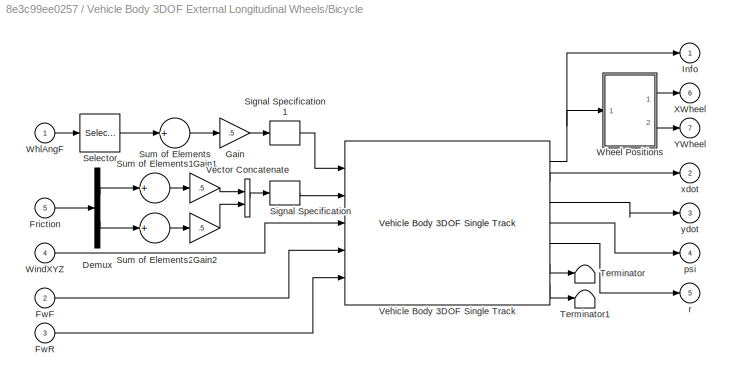
BLOCK [SubSystem] Vehicle Body 3DOF External Longitudinal Wheels/Bicycle
  Ports = [5, 7]
  RequestExecContextInheritance = off
  VariantControl = 0
BLOCK [Outport] Vehicle Body 3DOF External Longitudinal Wheels/Bicycle/ Info
  IconDisplay = Port number
BLOCK [Outport] Vehicle Body 3DOF External Longitudinal Wheels/Bicycle/ YWheel
  IconDisplay = Port number
  Port = 7
  Unit = m
BLOCK [Outport] Vehicle Body 3DOF External Longitudinal Wheels/Bicycle/ psi
  IconDisplay = Port number
  Port = 4
BLOCK [Outport] Vehicle Body 3DOF External Longitudinal Wheels/Bicycle/ r
  IconDisplay = Port number
  Port = 5
BLOCK [Outport] Vehicle Body 3DOF External Longitudinal Wheels/Bicycle/ xdot
  IconDisplay = Port number
  Port = 2
BLOCK [Outport] Vehicle Body 3DOF External Longitudinal Wheels/Bicycle/ ydot
  IconDisplay = Port number
  Port = 3
BLOCK [Demux] Vehicle Body 3DOF External Longitudinal Wheels/Bicycle/Demux
  DisplayOption = bar
  Outputs = [2,2]
  Ports = [1, 2]
BLOCK [Inport] Vehicle Body 3DOF External Longitudinal Wheels/Bicycle/Friction
  IconDisplay = Port number
  Port = 5
BLOCK [Inport] Vehicle Body 3DOF External Longitudinal Wheels/Bicycle/FwF 
  IconDisplay = Port number
  Port = 2
BLOCK [Inport] Vehicle Body 3DOF External Longitudinal Wheels/Bicycle/FwR 
  IconDisplay = Port number
  Port = 3
BLOCK [Gain] Vehicle Body 3DOF External Longitudinal Wheels/Bicycle/Gain
  Gain = .5
  OutDataTypeStr = Inherit: Inherit via internal rule
  ParamDataTypeStr = Inherit: Inherit via internal rule
  SaturateOnIntegerOverflow = off
BLOCK [Gain] Vehicle Body 3DOF External Longitudinal Wheels/Bicycle/Gain1
  Gain = .5
  OutDataTypeStr = Inherit: Inherit via internal rule
  ParamDataTypeStr = Inherit: Inherit via internal rule
  SaturateOnIntegerOverflow = off
BLOCK [Gain] Vehicle Body 3DOF External Longitudinal Wheels/Bicycle/Gain2
  Gain = .5
  OutDataTypeStr = Inherit: Inherit via internal rule
  ParamDataTypeStr = Inherit: Inherit via internal rule
  SaturateOnIntegerOverflow = off
BLOCK [Selector] Vehicle Body 3DOF External Longitudinal Wheels/Bicycle/Selector
  IndexOptions = Index vector (dialog)
  Indices = [1 2]
  InputPortWidth = 4
  OutputSizes = 1
  Ports = [1, 1]
BLOCK [SignalSpecification] Vehicle Body 3DOF External Longitudinal Wheels/Bicycle/Signal Specification
  Unit = 1
BLOCK [SignalSpecification] Vehicle Body 3DOF External Longitudinal Wheels/Bicycle/Signal Specification1
  Unit = rad
BLOCK [Sum] Vehicle Body 3DOF External Longitudinal Wheels/Bicycle/Sum of Elements
  InputSameDT = off
  Inputs = +
  OutDataTypeStr = Inherit: Inherit via internal rule
  Ports = [1, 1]
  SaturateOnIntegerOverflow = off
BLOCK [Sum] Vehicle Body 3DOF External Longitudinal Wheels/Bicycle/Sum of Elements1
  InputSameDT = off
  Inputs = +
  OutDataTypeStr = Inherit: Inherit via internal rule
  Ports = [1, 1]
  SaturateOnIntegerOverflow = off
BLOCK [Sum] Vehicle Body 3DOF External Longitudinal Wheels/Bicycle/Sum of Elements2
  InputSameDT = off
  Inputs = +
  OutDataTypeStr = Inherit: Inherit via internal rule
  Ports = [1, 1]
  SaturateOnIntegerOverflow = off
BLOCK [Terminator] Vehicle Body 3DOF External Longitudinal Wheels/Bicycle/Terminator
BLOCK [Terminator] Vehicle Body 3DOF External Longitudinal Wheels/Bicycle/Terminator1
BLOCK [Concatenate] Vehicle Body 3DOF External Longitudinal Wheels/Bicycle/Vector Concatenate
  Ports = [2, 1]
BLOCK [Reference] Vehicle Body 3DOF External Longitudinal Wheels/Bicycle/Vehicle Body 3DOF Single Track  REF=autolibshared/Vehicle Body 3DOF Single Track
  Ports = [5, 7]
  SourceBlock = autolibshared/Vehicle Body 3DOF Single Track
  SourceProductBaseCode = PW
  SourceProductName = Powertrain Blockset
  SourceType = Vehicle Body 3DOF Lateral
BLOCK [SubSystem] Vehicle Body 3DOF External Longitudinal Wheels/Bicycle/Wheel Positions
  Ports = [1, 2]
  RequestExecContextInheritance = off
BLOCK [BusSelector] Vehicle Body 3DOF External Longitudinal Wheels/Bicycle/Wheel Positions/Bus Selector
  OutputAsBus = off
  OutputSignals = InertFrm.FrntAxl.Disp.Y,InertFrm.RearAxl.Disp.Y
  Ports = [1, 2]
BLOCK [BusSelector] Vehicle Body 3DOF External Longitudinal Wheels/Bicycle/Wheel Positions/Bus Selector1
  OutputAsBus = off
  OutputSignals = InertFrm.FrntAxl.Disp.X,InertFrm.RearAxl.Disp.X
  Ports = [1, 2]
BLOCK [Ground] Vehicle Body 3DOF External Longitudinal Wheels/Bicycle/Wheel Positions/Ground
BLOCK [Ground] Vehicle Body 3DOF External Longitudinal Wheels/Bicycle/Wheel Positions/Ground1
BLOCK [Inport] Vehicle Body 3DOF External Longitudinal Wheels/Bicycle/Wheel Positions/Info
  IconDisplay = Port number
BLOCK [Concatenate] Vehicle Body 3DOF External Longitudinal Wheels/Bicycle/Wheel Positions/Vector Concatenate1
  NumInputs = 4
  Ports = [4, 1]
BLOCK [Concatenate] Vehicle Body 3DOF External Longitudinal Wheels/Bicycle/Wheel Positions/Vector Concatenate2
  NumInputs = 4
  Ports = [4, 1]
BLOCK [Outport] Vehicle Body 3DOF External Longitudinal Wheels/Bicycle/Wheel Positions/XWheel
  IconDisplay = Port number
  Unit = m
BLOCK [Outport] Vehicle Body 3DOF External Longitudinal Wheels/Bicycle/Wheel Positions/YWheel
  IconDisplay = Port number
  Port = 2
  Unit = m
BLOCK [Inport] Vehicle Body 3DOF External Longitudinal Wheels/Bicycle/WhlAngF 
  IconDisplay = Port number
BLOCK [Inport] Vehicle Body 3DOF External Longitudinal Wheels/Bicycle/WindXYZ
  IconDisplay = Port number
  Port = 4
BLOCK [Outport] Vehicle Body 3DOF External Longitudinal Wheels/Bicycle/XWheel
  IconDisplay = Port number
  Port = 6
  Unit = m
BLOCK [SubSystem] Vehicle Body 3DOF External Longitudinal Wheels/Dual
  Ports = [5, 7]
  RequestExecContextInheritance = off
  VariantControl = 1
BLOCK [Outport] Vehicle Body 3DOF External Longitudinal Wheels/Dual/ Info
  IconDisplay = Port number
BLOCK [Outport] Vehicle Body 3DOF External Longitudinal Wheels/Dual/ XWheel
  IconDisplay = Port number
  Port = 6
BLOCK [Outport] Vehicle Body 3DOF External Longitudinal Wheels/Dual/ YWheel
  IconDisplay = Port number
  Port = 7
BLOCK [Outport] Vehicle Body 3DOF External Longitudinal Wheels/Dual/ psi
  IconDisplay = Port number
  Port = 4
BLOCK [Outport] Vehicle Body 3DOF External Longitudinal Wheels/Dual/ r
  IconDisplay = Port number
  Port = 5
BLOCK [Outport] Vehicle Body 3DOF External Longitudinal Wheels/Dual/ xdot
  IconDisplay = Port number
  Port = 2
BLOCK [Outport] Vehicle Body 3DOF External Longitudinal Wheels/Dual/ ydot
  IconDisplay = Port number
  Port = 3
BLOCK [Inport] Vehicle Body 3DOF External Longitudinal Wheels/Dual/Friction
  IconDisplay = Port number
  Port = 5
BLOCK [Inport] Vehicle Body 3DOF External Longitudinal Wheels/Dual/FwF 
  IconDisplay = Port number
  Port = 2
BLOCK [Inport] Vehicle Body 3DOF External Longitudinal Wheels/Dual/FwR 
  IconDisplay = Port number
  Port = 3
BLOCK [Reshape] Vehicle Body 3DOF External Longitudinal Wheels/Dual/Reshape
  OutputDimensionality = Customize
  OutputDimensions = [2,2]
  Ports = [1, 1]
BLOCK [Selector] Vehicle Body 3DOF External Longitudinal Wheels/Dual/Selector
  IndexOptions = Index vector (dialog)
  Indices = [1 2]
  InputPortWidth = 4
  OutputSizes = 1
  Ports = [1, 1]
BLOCK [SignalSpecification] Vehicle Body 3DOF External Longitudinal Wheels/Dual/Signal Specification
  Unit = 1
BLOCK [Terminator] Vehicle Body 3DOF External Longitudinal Wheels/Dual/Terminator
BLOCK [Terminator] Vehicle Body 3DOF External Longitudinal Wheels/Dual/Terminator1
BLOCK [Reference] Vehicle Body 3DOF External Longitudinal Wheels/Dual/Vehicle Body 3DOF Dual Track  REF=autolibshared/Vehicle Body 3DOF Single Track
  Ports = [5, 7]
  SourceBlock = autolibshared/Vehicle Body 3DOF Single Track
  SourceProductBaseCode = PW
  SourceProductName = Powertrain Blockset
  SourceType = Vehicle Body 3DOF Lateral
BLOCK [SubSystem] Vehicle Body 3DOF External Longitudinal Wheels/Dual/Wheel Positions
  Ports = [1, 2]
  RequestExecContextInheritance = off
BLOCK [BusSelector] Vehicle Body 3DOF External Longitudinal Wheels/Dual/Wheel Positions/Bus Selector
  OutputAsBus = off
  OutputSignals = InertFrm.FrntAxl.Lft.Disp.Y,InertFrm.FrntAxl.Rght.Disp.Y,InertFrm.RearAxl.Lft.Disp.Y,InertFrm.RearAxl.Rght.Disp.Y
  Ports = [1, 4]
BLOCK [BusSelector] Vehicle Body 3DOF External Longitudinal Wheels/Dual/Wheel Positions/Bus Selector1
  OutputAsBus = off
  OutputSignals = InertFrm.FrntAxl.Lft.Disp.X,InertFrm.FrntAxl.Rght.Disp.X,InertFrm.RearAxl.Lft.Disp.X,InertFrm.RearAxl.Rght.Disp.X
  Ports = [1, 4]
BLOCK [Inport] Vehicle Body 3DOF External Longitudinal Wheels/Dual/Wheel Positions/Info
  IconDisplay = Port number
BLOCK [Concatenate] Vehicle Body 3DOF External Longitudinal Wheels/Dual/Wheel Positions/Vector Concatenate1
  NumInputs = 4
  Ports = [4, 1]
BLOCK [Concatenate] Vehicle Body 3DOF External Longitudinal Wheels/Dual/Wheel Positions/Vector Concatenate2
  NumInputs = 4
  Ports = [4, 1]
BLOCK [Outport] Vehicle Body 3DOF External Longitudinal Wheels/Dual/Wheel Positions/XWheel
  IconDisplay = Port number
  Unit = m
BLOCK [Outport] Vehicle Body 3DOF External Longitudinal Wheels/Dual/Wheel Positions/YWheel
  IconDisplay = Port number
  Port = 2
  Unit = m
BLOCK [Inport] Vehicle Body 3DOF External Longitudinal Wheels/Dual/WhlAngF 
  IconDisplay = Port number
BLOCK [Inport] Vehicle Body 3DOF External Longitudinal Wheels/Dual/WindXYZ
  IconDisplay = Port number
  Port = 4
BLOCK [Inport] Vehicle Body 3DOF External Longitudinal Wheels/Friction
  IconDisplay = Port number
  Port = 5
  PortDimensions = 4
  Unit = 1
BLOCK [Inport] Vehicle Body 3DOF External Longitudinal Wheels/FwF 
  IconDisplay = Port number
  Port = 2
BLOCK [Inport] Vehicle Body 3DOF External Longitudinal Wheels/FwR 
  IconDisplay = Port number
  Port = 3
BLOCK [Inport] Vehicle Body 3DOF External Longitudinal Wheels/WhlAngF 
  IconDisplay = Port number
BLOCK [Inport] Vehicle Body 3DOF External Longitudinal Wheels/WindXYZ
  IconDisplay = Port number
  Port = 4
BLOCK [Inport] WheelAngle
  IconDisplay = Port number
  Port = 4
  PortDimensions = 4
  Unit = rad
BLOCK [Inport] WindXYZ
  IconDisplay = Port number
  Port = 3
  PortDimensions = 3
BLOCK [Outport] X
  IconDisplay = Port number
  Port = 10
BLOCK [Outport] XWheel
  IconDisplay = Port number
  Port = 19
BLOCK [Outport] Xdot
  IconDisplay = Port number
  Port = 13
BLOCK [Outport] Y
  IconDisplay = Port number
  Port = 11
BLOCK [Outport] YWheel
  IconDisplay = Port number
  Port = 20
BLOCK [Outport] Ydot
  IconDisplay = Port number
  Port = 14
BLOCK [Outport] Z
  IconDisplay = Port number
  Port = 12
BLOCK [Outport] ZHP
  IconDisplay = Port number
  Port = 18
  Unit = m
BLOCK [Outport] ay
  IconDisplay = Port number
  Port = 9
BLOCK [Constant] h
  Value = ones(4,1).*VEH.HeightCG
BLOCK [Outport] kappa
  IconDisplay = Port number
  Port = 7
  PortDimensions = 4
BLOCK [Outport] omega
  IconDisplay = Port number
  Port = 8
  PortDimensions = 4
BLOCK [Outport] p
  IconDisplay = Port number
  Port = 4
BLOCK [Outport] phi
  IconDisplay = Port number
  Port = 15
BLOCK [Outport] psi
  IconDisplay = Port number
  Port = 3
BLOCK [Outport] q
  IconDisplay = Port number
  Port = 5
BLOCK [Outport] r
  IconDisplay = Port number
  Port = 6
BLOCK [Outport] theta
  IconDisplay = Port number
  Port = 16
BLOCK [Outport] xdot
  IconDisplay = Port number
BLOCK [Outport] ydot
  IconDisplay = Port number
  Port = 2
BLOCK [Outport] zAxle
  IconDisplay = Port number
  Port = 17
ANNOTATION (root): <copyright redacted>
ANNOTATION Longitudinal Wheels 4DOF/Axle Forces: 1) Add Subsystem or Model blocks as valid variant choices. 2) You cannot connect blocks at this level. At simulation, connectivity is automatically determined, based on the active variant and port name matching.
ANNOTATION Longitudinal Wheels 4DOF/Velocity and Vertical Load: 1) Add Subsystem or Model blocks as valid variant choices. 2) You cannot connect blocks at this level. At simulation, connectivity is automatically determined, based on the active variant and port name matching.
LINE AxleTrq:1 -> Longitudinal Wheels 4DOF:2
LINE BrkPrs:1 -> Longitudinal Wheels 4DOF:3
LINE Bus Selector:1 -> X:1
LINE Bus Selector:10 -> q:1
LINE Bus Selector:2 -> Y:1
LINE Bus Selector:3 -> Z:1
LINE Bus Selector:4 -> Xdot:1
LINE Bus Selector:5 -> Ydot:1
LINE Bus Selector:6 -> ay:1
LINE Bus Selector:7 -> phi:1
LINE Bus Selector:8 -> theta:1
LINE Bus Selector:9 -> p:1
NET Friction:1 -> Goto:1, Longitudinal Wheels 4DOF:5
LINE From:1 -> Vehicle Body 3DOF External Longitudinal Wheels:5
LINE Ground:1 -> Longitudinal Wheels 4DOF:4
LINE Longitudinal Wheels 4DOF/Axle Forces/Bicycle/F:1 -> Longitudinal Wheels 4DOF/Axle Forces/Bicycle/Sum of Elements:1
LINE Longitudinal Wheels 4DOF/Axle Forces/Bicycle/R:1 -> Longitudinal Wheels 4DOF/Axle Forces/Bicycle/Sum of Elements1:1
LINE Longitudinal Wheels 4DOF/Axle Forces/Bicycle/Sum of Elements1:1 -> Longitudinal Wheels 4DOF/Axle Forces/Bicycle/RearAxlF:1
LINE Longitudinal Wheels 4DOF/Axle Forces/Bicycle/Sum of Elements:1 -> Longitudinal Wheels 4DOF/Axle Forces/Bicycle/FrntAxlF:1
LINE Longitudinal Wheels 4DOF/Axle Forces/Dual/F:1 -> Longitudinal Wheels 4DOF/Axle Forces/Dual/FrntAxlF:1
LINE Longitudinal Wheels 4DOF/Axle Forces/Dual/R:1 -> Longitudinal Wheels 4DOF/Axle Forces/Dual/RearAxlF:1
LINE Longitudinal Wheels 4DOF/Axle Forces:1 -> Longitudinal Wheels 4DOF/FrntAxlF:1
LINE Longitudinal Wheels 4DOF/Axle Forces:2 -> Longitudinal Wheels 4DOF/RearAxlF:1
LINE Longitudinal Wheels 4DOF/AxleTrq:1 -> Longitudinal Wheels 4DOF/Veh2Tire:1
LINE Longitudinal Wheels 4DOF/BrkPrs:1 -> Longitudinal Wheels 4DOF/Veh2Tire:2
LINE Longitudinal Wheels 4DOF/Bus Selector5:1 -> Longitudinal Wheels 4DOF/Veh2Tire:3
NET Longitudinal Wheels 4DOF/Constant3:1 -> Longitudinal Wheels 4DOF/Tires:6, Longitudinal Wheels 4DOF/Wheel Angles:2
LINE Longitudinal Wheels 4DOF/Constant:1 -> Longitudinal Wheels 4DOF/Tires:7
LINE Longitudinal Wheels 4DOF/Friction:1 -> Longitudinal Wheels 4DOF/Tires:9
LINE Longitudinal Wheels 4DOF/Ground:1 -> Longitudinal Wheels 4DOF/Tires:10
LINE Longitudinal Wheels 4DOF/Tire2Veh/Bus Selector7:1 -> Longitudinal Wheels 4DOF/Tire2Veh/omega:1
LINE Longitudinal Wheels 4DOF/Tire2Veh/Bus Selector7:2 -> Longitudinal Wheels 4DOF/Tire2Veh/Dead Zone2:1
LINE Longitudinal Wheels 4DOF/Tire2Veh/Bus Selector7:3 -> Longitudinal Wheels 4DOF/Tire2Veh/Re:1
LINE Longitudinal Wheels 4DOF/Tire2Veh/Bus Selector7:4 -> Longitudinal Wheels 4DOF/Tire2Veh/Unary Minus1:1
LINE Longitudinal Wheels 4DOF/Tire2Veh/Bus Selector7:5 -> Longitudinal Wheels 4DOF/Tire2Veh/Unary Minus2:1
LINE Longitudinal Wheels 4DOF/Tire2Veh/Bus Selector7:6 -> Longitudinal Wheels 4DOF/Tire2Veh/kappa:1
LINE Longitudinal Wheels 4DOF/Tire2Veh/Dead Zone2:1 -> Longitudinal Wheels 4DOF/Tire2Veh/Demux:1
LINE Longitudinal Wheels 4DOF/Tire2Veh/Demux:1 -> Longitudinal Wheels 4DOF/Tire2Veh/FwF:1
LINE Longitudinal Wheels 4DOF/Tire2Veh/Demux:2 -> Longitudinal Wheels 4DOF/Tire2Veh/FwR:1
LINE Longitudinal Wheels 4DOF/Tire2Veh/Unary Minus1:1 -> Longitudinal Wheels 4DOF/Tire2Veh/z:1
LINE Longitudinal Wheels 4DOF/Tire2Veh/Unary Minus2:1 -> Longitudinal Wheels 4DOF/Tire2Veh/zdot:1
LINE Longitudinal Wheels 4DOF/Tire2Veh/Wheel:1 -> Longitudinal Wheels 4DOF/Tire2Veh/Bus Selector7:1
LINE Longitudinal Wheels 4DOF/Tire2Veh:1 -> Longitudinal Wheels 4DOF/Axle Forces:1
LINE Longitudinal Wheels 4DOF/Tire2Veh:2 -> Longitudinal Wheels 4DOF/Axle Forces:2
LINE Longitudinal Wheels 4DOF/Tire2Veh:3 -> Longitudinal Wheels 4DOF/zAxle:1
LINE Longitudinal Wheels 4DOF/Tire2Veh:4 -> Longitudinal Wheels 4DOF/omega:1
LINE Longitudinal Wheels 4DOF/Tire2Veh:5 -> Longitudinal Wheels 4DOF/kappa:1
NET Longitudinal Wheels 4DOF/Tires/Brake Pressure:1 -> Longitudinal Wheels 4DOF/Tires/Selector11:1, Longitudinal Wheels 4DOF/Tires/Selector1:1, Longitudinal Wheels 4DOF/Tires/Selector21:1, Longitudinal Wheels 4DOF/Tires/Selector31:1
LINE Longitudinal Wheels 4DOF/Tires/Bus Creator:1 -> Longitudinal Wheels 4DOF/Tires/Out1:1
LINE Longitudinal Wheels 4DOF/Tires/Camber:1 -> Longitudinal Wheels 4DOF/Tires/Terminator2:1
NET Longitudinal Wheels 4DOF/Tires/DriveTorque:1 -> Longitudinal Wheels 4DOF/Tires/Selector10:1, Longitudinal Wheels 4DOF/Tires/Selector20:1, Longitudinal Wheels 4DOF/Tires/Selector30:1, Longitudinal Wheels 4DOF/Tires/Selector:1
LINE Longitudinal Wheels 4DOF/Tires/Fx/Bus Selector1:1 -> Longitudinal Wheels 4DOF/Tires/Fx/Vector Concatenate:2
LINE Longitudinal Wheels 4DOF/Tires/Fx/Bus Selector2:1 -> Longitudinal Wheels 4DOF/Tires/Fx/Vector Concatenate:3
LINE Longitudinal Wheels 4DOF/Tires/Fx/Bus Selector3:1 -> Longitudinal Wheels 4DOF/Tires/Fx/Vector Concatenate:4
LINE Longitudinal Wheels 4DOF/Tires/Fx/Bus Selector:1 -> Longitudinal Wheels 4DOF/Tires/Fx/Vector Concatenate:1
LINE Longitudinal Wheels 4DOF/Tires/Fx/In1:1 -> Longitudinal Wheels 4DOF/Tires/Fx/Bus Selector:1
LINE Longitudinal Wheels 4DOF/Tires/Fx/In2:1 -> Longitudinal Wheels 4DOF/Tires/Fx/Bus Selector1:1
LINE Longitudinal Wheels 4DOF/Tires/Fx/In3:1 -> Longitudinal Wheels 4DOF/Tires/Fx/Bus Selector2:1
LINE Longitudinal Wheels 4DOF/Tires/Fx/In4:1 -> Longitudinal Wheels 4DOF/Tires/Fx/Bus Selector3:1
LINE Longitudinal Wheels 4DOF/Tires/Fx/Vector Concatenate:1 -> Longitudinal Wheels 4DOF/Tires/Fx/Out1:1
LINE Longitudinal Wheels 4DOF/Tires/Fx:1 -> Longitudinal Wheels 4DOF/Tires/Bus Creator:2
LINE Longitudinal Wheels 4DOF/Tires/Fy:1 -> Longitudinal Wheels 4DOF/Tires/Bus Creator:3
LINE Longitudinal Wheels 4DOF/Tires/Fz1/Bus Selector1:1 -> Longitudinal Wheels 4DOF/Tires/Fz1/Vector Concatenate:2
LINE Longitudinal Wheels 4DOF/Tires/Fz1/Bus Selector2:1 -> Longitudinal Wheels 4DOF/Tires/Fz1/Vector Concatenate:3
LINE Longitudinal Wheels 4DOF/Tires/Fz1/Bus Selector3:1 -> Longitudinal Wheels 4DOF/Tires/Fz1/Vector Concatenate:4
LINE Longitudinal Wheels 4DOF/Tires/Fz1/Bus Selector:1 -> Longitudinal Wheels 4DOF/Tires/Fz1/Vector Concatenate:1
LINE Longitudinal Wheels 4DOF/Tires/Fz1/In1:1 -> Longitudinal Wheels 4DOF/Tires/Fz1/Bus Selector:1
LINE Longitudinal Wheels 4DOF/Tires/Fz1/In2:1 -> Longitudinal Wheels 4DOF/Tires/Fz1/Bus Selector1:1
LINE Longitudinal Wheels 4DOF/Tires/Fz1/In3:1 -> Longitudinal Wheels 4DOF/Tires/Fz1/Bus Selector2:1
LINE Longitudinal Wheels 4DOF/Tires/Fz1/In4:1 -> Longitudinal Wheels 4DOF/Tires/Fz1/Bus Selector3:1
LINE Longitudinal Wheels 4DOF/Tires/Fz1/Vector Concatenate:1 -> Longitudinal Wheels 4DOF/Tires/Fz1/Out1:1
LINE Longitudinal Wheels 4DOF/Tires/Fz1:1 -> Longitudinal Wheels 4DOF/Tires/Bus Creator:4
NET Longitudinal Wheels 4DOF/Tires/Fz:1 -> Longitudinal Wheels 4DOF/Tires/Selector14:1, Longitudinal Wheels 4DOF/Tires/Selector19:1, Longitudinal Wheels 4DOF/Tires/Selector7:1, Longitudinal Wheels 4DOF/Tires/Selector8:1
NET Longitudinal Wheels 4DOF/Tires/Gnd:1 -> Longitudinal Wheels 4DOF/Tires/Selector13:1, Longitudinal Wheels 4DOF/Tires/Selector16:1, Longitudinal Wheels 4DOF/Tires/Selector23:1, Longitudinal Wheels 4DOF/Tires/Selector5:1
NET Longitudinal Wheels 4DOF/Tires/Longitudinal Wheel - Disk Brake1:1 -> Longitudinal Wheels 4DOF/Tires/Fx:2, Longitudinal Wheels 4DOF/Tires/Fz1:2, Longitudinal Wheels 4DOF/Tires/My:2, Longitudinal Wheels 4DOF/Tires/Re:2, Longitudinal Wheels 4DOF/Tires/kappa:2, Longitudinal Wheels 4DOF/Tires/omega:2, Longitudinal Wheels 4DOF/Tires/z:2, Longitudinal Wheels 4DOF/Tires/zdot:2
LINE Longitudinal Wheels 4DOF/Tires/Longitudinal Wheel - Disk Brake1:2 -> Longitudinal Wheels 4DOF/Tires/Terminator17:1
LINE Longitudinal Wheels 4DOF/Tires/Longitudinal Wheel - Disk Brake1:3 -> Longitudinal Wheels 4DOF/Tires/Terminator16:1
NET Longitudinal Wheels 4DOF/Tires/Longitudinal Wheel - Disk Brake2:1 -> Longitudinal Wheels 4DOF/Tires/Fx:3, Longitudinal Wheels 4DOF/Tires/Fz1:3, Longitudinal Wheels 4DOF/Tires/My:3, Longitudinal Wheels 4DOF/Tires/Re:3, Longitudinal Wheels 4DOF/Tires/kappa:3, Longitudinal Wheels 4DOF/Tires/omega:3, Longitudinal Wheels 4DOF/Tires/z:3, Longitudinal Wheels 4DOF/Tires/zdot:3
LINE Longitudinal Wheels 4DOF/Tires/Longitudinal Wheel - Disk Brake2:2 -> Longitudinal Wheels 4DOF/Tires/Terminator13:1
LINE Longitudinal Wheels 4DOF/Tires/Longitudinal Wheel - Disk Brake2:3 -> Longitudinal Wheels 4DOF/Tires/Terminator10:1
NET Longitudinal Wheels 4DOF/Tires/Longitudinal Wheel - Disk Brake3:1 -> Longitudinal Wheels 4DOF/Tires/Fx:4, Longitudinal Wheels 4DOF/Tires/Fz1:4, Longitudinal Wheels 4DOF/Tires/My:4, Longitudinal Wheels 4DOF/Tires/Re:4, Longitudinal Wheels 4DOF/Tires/kappa:4, Longitudinal Wheels 4DOF/Tires/omega:4, Longitudinal Wheels 4DOF/Tires/z:4, Longitudinal Wheels 4DOF/Tires/zdot:4
LINE Longitudinal Wheels 4DOF/Tires/Longitudinal Wheel - Disk Brake3:2 -> Longitudinal Wheels 4DOF/Tires/Terminator7:1
LINE Longitudinal Wheels 4DOF/Tires/Longitudinal Wheel - Disk Brake3:3 -> Longitudinal Wheels 4DOF/Tires/Terminator4:1
NET Longitudinal Wheels 4DOF/Tires/Longitudinal Wheel - Disk Brake:1 -> Longitudinal Wheels 4DOF/Tires/Fx:1, Longitudinal Wheels 4DOF/Tires/Fz1:1, Longitudinal Wheels 4DOF/Tires/My:1, Longitudinal Wheels 4DOF/Tires/Re:1, Longitudinal Wheels 4DOF/Tires/kappa:1, Longitudinal Wheels 4DOF/Tires/omega:1, Longitudinal Wheels 4DOF/Tires/z:1, Longitudinal Wheels 4DOF/Tires/zdot:1
LINE Longitudinal Wheels 4DOF/Tires/Longitudinal Wheel - Disk Brake:2 -> Longitudinal Wheels 4DOF/Tires/Terminator19:1
LINE Longitudinal Wheels 4DOF/Tires/Longitudinal Wheel - Disk Brake:3 -> Longitudinal Wheels 4DOF/Tires/Terminator18:1
LINE Longitudinal Wheels 4DOF/Tires/Mx:1 -> Longitudinal Wheels 4DOF/Tires/Bus Creator:5
LINE Longitudinal Wheels 4DOF/Tires/My/Bus Selector1:1 -> Longitudinal Wheels 4DOF/Tires/My/Vector Concatenate:2
LINE Longitudinal Wheels 4DOF/Tires/My/Bus Selector2:1 -> Longitudinal Wheels 4DOF/Tires/My/Vector Concatenate:3
LINE Longitudinal Wheels 4DOF/Tires/My/Bus Selector3:1 -> Longitudinal Wheels 4DOF/Tires/My/Vector Concatenate:4
LINE Longitudinal Wheels 4DOF/Tires/My/Bus Selector:1 -> Longitudinal Wheels 4DOF/Tires/My/Vector Concatenate:1
LINE Longitudinal Wheels 4DOF/Tires/My/In1:1 -> Longitudinal Wheels 4DOF/Tires/My/Bus Selector:1
LINE Longitudinal Wheels 4DOF/Tires/My/In2:1 -> Longitudinal Wheels 4DOF/Tires/My/Bus Selector1:1
LINE Longitudinal Wheels 4DOF/Tires/My/In3:1 -> Longitudinal Wheels 4DOF/Tires/My/Bus Selector2:1
LINE Longitudinal Wheels 4DOF/Tires/My/In4:1 -> Longitudinal Wheels 4DOF/Tires/My/Bus Selector3:1
LINE Longitudinal Wheels 4DOF/Tires/My/Vector Concatenate:1 -> Longitudinal Wheels 4DOF/Tires/My/Out1:1
LINE Longitudinal Wheels 4DOF/Tires/My:1 -> Longitudinal Wheels 4DOF/Tires/Bus Creator:6
LINE Longitudinal Wheels 4DOF/Tires/Mz:1 -> Longitudinal Wheels 4DOF/Tires/Bus Creator:7
NET Longitudinal Wheels 4DOF/Tires/Press:1 -> Longitudinal Wheels 4DOF/Tires/Selector12:1, Longitudinal Wheels 4DOF/Tires/Selector17:1, Longitudinal Wheels 4DOF/Tires/Selector24:1, Longitudinal Wheels 4DOF/Tires/Selector4:1
LINE Longitudinal Wheels 4DOF/Tires/Re/Bus Selector1:1 -> Longitudinal Wheels 4DOF/Tires/Re/Vector Concatenate:2
LINE Longitudinal Wheels 4DOF/Tires/Re/Bus Selector2:1 -> Longitudinal Wheels 4DOF/Tires/Re/Vector Concatenate:3
LINE Longitudinal Wheels 4DOF/Tires/Re/Bus Selector3:1 -> Longitudinal Wheels 4DOF/Tires/Re/Vector Concatenate:4
LINE Longitudinal Wheels 4DOF/Tires/Re/Bus Selector:1 -> Longitudinal Wheels 4DOF/Tires/Re/Vector Concatenate:1
LINE Longitudinal Wheels 4DOF/Tires/Re/In1:1 -> Longitudinal Wheels 4DOF/Tires/Re/Bus Selector:1
LINE Longitudinal Wheels 4DOF/Tires/Re/In2:1 -> Longitudinal Wheels 4DOF/Tires/Re/Bus Selector1:1
LINE Longitudinal Wheels 4DOF/Tires/Re/In3:1 -> Longitudinal Wheels 4DOF/Tires/Re/Bus Selector2:1
LINE Longitudinal Wheels 4DOF/Tires/Re/In4:1 -> Longitudinal Wheels 4DOF/Tires/Re/Bus Selector3:1
LINE Longitudinal Wheels 4DOF/Tires/Re/Vector Concatenate:1 -> Longitudinal Wheels 4DOF/Tires/Re/Out1:1
LINE Longitudinal Wheels 4DOF/Tires/Re:1 -> Longitudinal Wheels 4DOF/Tires/Bus Creator:8
LINE Longitudinal Wheels 4DOF/Tires/Selector10:1 -> Longitudinal Wheels 4DOF/Tires/Longitudinal Wheel - Disk Brake1:2
LINE Longitudinal Wheels 4DOF/Tires/Selector11:1 -> Longitudinal Wheels 4DOF/Tires/Longitudinal Wheel - Disk Brake1:1
LINE Longitudinal Wheels 4DOF/Tires/Selector12:1 -> Longitudinal Wheels 4DOF/Tires/Longitudinal Wheel - Disk Brake1:6
LINE Longitudinal Wheels 4DOF/Tires/Selector13:1 -> Longitudinal Wheels 4DOF/Tires/Longitudinal Wheel - Disk Brake1:7
LINE Longitudinal Wheels 4DOF/Tires/Selector14:1 -> Longitudinal Wheels 4DOF/Tires/Longitudinal Wheel - Disk Brake2:4
LINE Longitudinal Wheels 4DOF/Tires/Selector15:1 -> Longitudinal Wheels 4DOF/Tires/Longitudinal Wheel - Disk Brake2:3
LINE Longitudinal Wheels 4DOF/Tires/Selector16:1 -> Longitudinal Wheels 4DOF/Tires/Longitudinal Wheel - Disk Brake2:7
LINE Longitudinal Wheels 4DOF/Tires/Selector17:1 -> Longitudinal Wheels 4DOF/Tires/Longitudinal Wheel - Disk Brake2:6
LINE Longitudinal Wheels 4DOF/Tires/Selector18:1 -> Longitudinal Wheels 4DOF/Tires/Longitudinal Wheel - Disk Brake2:5
LINE Longitudinal Wheels 4DOF/Tires/Selector19:1 -> Longitudinal Wheels 4DOF/Tires/Longitudinal Wheel - Disk Brake3:4
LINE Longitudinal Wheels 4DOF/Tires/Selector1:1 -> Longitudinal Wheels 4DOF/Tires/Longitudinal Wheel - Disk Brake:1
LINE Longitudinal Wheels 4DOF/Tires/Selector20:1 -> Longitudinal Wheels 4DOF/Tires/Longitudinal Wheel - Disk Brake2:2
LINE Longitudinal Wheels 4DOF/Tires/Selector21:1 -> Longitudinal Wheels 4DOF/Tires/Longitudinal Wheel - Disk Brake2:1
LINE Longitudinal Wheels 4DOF/Tires/Selector22:1 -> Longitudinal Wheels 4DOF/Tires/Longitudinal Wheel - Disk Brake3:3
LINE Longitudinal Wheels 4DOF/Tires/Selector23:1 -> Longitudinal Wheels 4DOF/Tires/Longitudinal Wheel - Disk Brake3:7
LINE Longitudinal Wheels 4DOF/Tires/Selector24:1 -> Longitudinal Wheels 4DOF/Tires/Longitudinal Wheel - Disk Brake3:6
LINE Longitudinal Wheels 4DOF/Tires/Selector25:1 -> Longitudinal Wheels 4DOF/Tires/Longitudinal Wheel - Disk Brake3:5
LINE Longitudinal Wheels 4DOF/Tires/Selector2:1 -> Longitudinal Wheels 4DOF/Tires/Longitudinal Wheel - Disk Brake:3
LINE Longitudinal Wheels 4DOF/Tires/Selector30:1 -> Longitudinal Wheels 4DOF/Tires/Longitudinal Wheel - Disk Brake3:2
LINE Longitudinal Wheels 4DOF/Tires/Selector31:1 -> Longitudinal Wheels 4DOF/Tires/Longitudinal Wheel - Disk Brake3:1
LINE Longitudinal Wheels 4DOF/Tires/Selector3:1 -> Longitudinal Wheels 4DOF/Tires/Longitudinal Wheel - Disk Brake:5
LINE Longitudinal Wheels 4DOF/Tires/Selector4:1 -> Longitudinal Wheels 4DOF/Tires/Longitudinal Wheel - Disk Brake:6
LINE Longitudinal Wheels 4DOF/Tires/Selector5:1 -> Longitudinal Wheels 4DOF/Tires/Longitudinal Wheel - Disk Brake:7
LINE Longitudinal Wheels 4DOF/Tires/Selector6:1 -> Longitudinal Wheels 4DOF/Tires/Longitudinal Wheel - Disk Brake1:3
LINE Longitudinal Wheels 4DOF/Tires/Selector7:1 -> Longitudinal Wheels 4DOF/Tires/Longitudinal Wheel - Disk Brake1:4
LINE Longitudinal Wheels 4DOF/Tires/Selector8:1 -> Longitudinal Wheels 4DOF/Tires/Longitudinal Wheel - Disk Brake:4
LINE Longitudinal Wheels 4DOF/Tires/Selector9:1 -> Longitudinal Wheels 4DOF/Tires/Longitudinal Wheel - Disk Brake1:5
LINE Longitudinal Wheels 4DOF/Tires/Selector:1 -> Longitudinal Wheels 4DOF/Tires/Longitudinal Wheel - Disk Brake:2
NET Longitudinal Wheels 4DOF/Tires/Vx:1 -> Longitudinal Wheels 4DOF/Tires/Selector15:1, Longitudinal Wheels 4DOF/Tires/Selector22:1, Longitudinal Wheels 4DOF/Tires/Selector2:1, Longitudinal Wheels 4DOF/Tires/Selector6:1
LINE Longitudinal Wheels 4DOF/Tires/Vy:1 -> Longitudinal Wheels 4DOF/Tires/Terminator1:1
LINE Longitudinal Wheels 4DOF/Tires/kappa/Bus Selector1:1 -> Longitudinal Wheels 4DOF/Tires/kappa/Vector Concatenate:2
LINE Longitudinal Wheels 4DOF/Tires/kappa/Bus Selector2:1 -> Longitudinal Wheels 4DOF/Tires/kappa/Vector Concatenate:3
LINE Longitudinal Wheels 4DOF/Tires/kappa/Bus Selector3:1 -> Longitudinal Wheels 4DOF/Tires/kappa/Vector Concatenate:4
LINE Longitudinal Wheels 4DOF/Tires/kappa/Bus Selector:1 -> Longitudinal Wheels 4DOF/Tires/kappa/Vector Concatenate:1
LINE Longitudinal Wheels 4DOF/Tires/kappa/In1:1 -> Longitudinal Wheels 4DOF/Tires/kappa/Bus Selector:1
LINE Longitudinal Wheels 4DOF/Tires/kappa/In2:1 -> Longitudinal Wheels 4DOF/Tires/kappa/Bus Selector1:1
LINE Longitudinal Wheels 4DOF/Tires/kappa/In3:1 -> Longitudinal Wheels 4DOF/Tires/kappa/Bus Selector2:1
LINE Longitudinal Wheels 4DOF/Tires/kappa/In4:1 -> Longitudinal Wheels 4DOF/Tires/kappa/Bus Selector3:1
LINE Longitudinal Wheels 4DOF/Tires/kappa/Vector Concatenate:1 -> Longitudinal Wheels 4DOF/Tires/kappa/Out1:1
LINE Longitudinal Wheels 4DOF/Tires/kappa:1 -> Longitudinal Wheels 4DOF/Tires/Bus Creator:11
NET Longitudinal Wheels 4DOF/Tires/lambda:1 -> Longitudinal Wheels 4DOF/Tires/Selector18:1, Longitudinal Wheels 4DOF/Tires/Selector25:1, Longitudinal Wheels 4DOF/Tires/Selector3:1, Longitudinal Wheels 4DOF/Tires/Selector9:1
LINE Longitudinal Wheels 4DOF/Tires/omega/Bus Selector1:1 -> Longitudinal Wheels 4DOF/Tires/omega/Vector Concatenate:3
LINE Longitudinal Wheels 4DOF/Tires/omega/Bus Selector2:1 -> Longitudinal Wheels 4DOF/Tires/omega/Vector Concatenate:2
LINE Longitudinal Wheels 4DOF/Tires/omega/Bus Selector3:1 -> Longitudinal Wheels 4DOF/Tires/omega/Vector Concatenate:4
LINE Longitudinal Wheels 4DOF/Tires/omega/Bus Selector4:1 -> Longitudinal Wheels 4DOF/Tires/omega/Vector Concatenate:1
LINE Longitudinal Wheels 4DOF/Tires/omega/In1:1 -> Longitudinal Wheels 4DOF/Tires/omega/Bus Selector4:1
LINE Longitudinal Wheels 4DOF/Tires/omega/In2:1 -> Longitudinal Wheels 4DOF/Tires/omega/Bus Selector2:1
LINE Longitudinal Wheels 4DOF/Tires/omega/In3:1 -> Longitudinal Wheels 4DOF/Tires/omega/Bus Selector1:1
LINE Longitudinal Wheels 4DOF/Tires/omega/In4:1 -> Longitudinal Wheels 4DOF/Tires/omega/Bus Selector3:1
LINE Longitudinal Wheels 4DOF/Tires/omega/Vector Concatenate:1 -> Longitudinal Wheels 4DOF/Tires/omega/Out1:1
LINE Longitudinal Wheels 4DOF/Tires/omega:1 -> Longitudinal Wheels 4DOF/Tires/Bus Creator:1
LINE Longitudinal Wheels 4DOF/Tires/r:1 -> Longitudinal Wheels 4DOF/Tires/Terminator3:1
LINE Longitudinal Wheels 4DOF/Tires/z/Bus Selector1:1 -> Longitudinal Wheels 4DOF/Tires/z/Vector Concatenate:2
LINE Longitudinal Wheels 4DOF/Tires/z/Bus Selector2:1 -> Longitudinal Wheels 4DOF/Tires/z/Vector Concatenate:3
LINE Longitudinal Wheels 4DOF/Tires/z/Bus Selector3:1 -> Longitudinal Wheels 4DOF/Tires/z/Vector Concatenate:4
LINE Longitudinal Wheels 4DOF/Tires/z/Bus Selector:1 -> Longitudinal Wheels 4DOF/Tires/z/Vector Concatenate:1
LINE Longitudinal Wheels 4DOF/Tires/z/In1:1 -> Longitudinal Wheels 4DOF/Tires/z/Bus Selector:1
LINE Longitudinal Wheels 4DOF/Tires/z/In2:1 -> Longitudinal Wheels 4DOF/Tires/z/Bus Selector1:1
LINE Longitudinal Wheels 4DOF/Tires/z/In3:1 -> Longitudinal Wheels 4DOF/Tires/z/Bus Selector2:1
LINE Longitudinal Wheels 4DOF/Tires/z/In4:1 -> Longitudinal Wheels 4DOF/Tires/z/Bus Selector3:1
LINE Longitudinal Wheels 4DOF/Tires/z/Vector Concatenate:1 -> Longitudinal Wheels 4DOF/Tires/z/Out1:1
LINE Longitudinal Wheels 4DOF/Tires/z:1 -> Longitudinal Wheels 4DOF/Tires/Bus Creator:9
LINE Longitudinal Wheels 4DOF/Tires/zdot/Bus Selector1:1 -> Longitudinal Wheels 4DOF/Tires/zdot/Vector Concatenate:2
LINE Longitudinal Wheels 4DOF/Tires/zdot/Bus Selector2:1 -> Longitudinal Wheels 4DOF/Tires/zdot/Vector Concatenate:3
LINE Longitudinal Wheels 4DOF/Tires/zdot/Bus Selector3:1 -> Longitudinal Wheels 4DOF/Tires/zdot/Vector Concatenate:4
LINE Longitudinal Wheels 4DOF/Tires/zdot/Bus Selector:1 -> Longitudinal Wheels 4DOF/Tires/zdot/Vector Concatenate:1
LINE Longitudinal Wheels 4DOF/Tires/zdot/In1:1 -> Longitudinal Wheels 4DOF/Tires/zdot/Bus Selector:1
LINE Longitudinal Wheels 4DOF/Tires/zdot/In2:1 -> Longitudinal Wheels 4DOF/Tires/zdot/Bus Selector1:1
LINE Longitudinal Wheels 4DOF/Tires/zdot/In3:1 -> Longitudinal Wheels 4DOF/Tires/zdot/Bus Selector2:1
LINE Longitudinal Wheels 4DOF/Tires/zdot/In4:1 -> Longitudinal Wheels 4DOF/Tires/zdot/Bus Selector3:1
LINE Longitudinal Wheels 4DOF/Tires/zdot/Vector Concatenate:1 -> Longitudinal Wheels 4DOF/Tires/zdot/Out1:1
LINE Longitudinal Wheels 4DOF/Tires/zdot:1 -> Longitudinal Wheels 4DOF/Tires/Bus Creator:10
LINE Longitudinal Wheels 4DOF/Tires:1 -> Longitudinal Wheels 4DOF/Tire2Veh:1
LINE Longitudinal Wheels 4DOF/Veh2Tire/Axle:1 -> Longitudinal Wheels 4DOF/Veh2Tire/Reshape4:1
LINE Longitudinal Wheels 4DOF/Veh2Tire/Brake:1 -> Longitudinal Wheels 4DOF/Veh2Tire/Reshape3:1
LINE Longitudinal Wheels 4DOF/Veh2Tire/Reshape3:1 -> Longitudinal Wheels 4DOF/Veh2Tire/P:1
LINE Longitudinal Wheels 4DOF/Veh2Tire/Reshape4:1 -> Longitudinal Wheels 4DOF/Veh2Tire/T:1
LINE Longitudinal Wheels 4DOF/Veh2Tire/Unary Minus:1 -> Longitudinal Wheels 4DOF/Veh2Tire/psidot:1
LINE Longitudinal Wheels 4DOF/Veh2Tire/VehVel:1 -> Longitudinal Wheels 4DOF/Veh2Tire/Wheel to Body Transform:1
LINE Longitudinal Wheels 4DOF/Veh2Tire/Wheel to Body Transform/Demux1:1 -> Longitudinal Wheels 4DOF/Veh2Tire/Wheel to Body Transform/xdotWheel:1
LINE Longitudinal Wheels 4DOF/Veh2Tire/Wheel to Body Transform/Demux1:2 -> Longitudinal Wheels 4DOF/Veh2Tire/Wheel to Body Transform/ydotWheel:1
LINE Longitudinal Wheels 4DOF/Veh2Tire/Wheel to Body Transform/Demux1:3 -> Longitudinal Wheels 4DOF/Veh2Tire/Wheel to Body Transform/zdotWheel:1
LINE Longitudinal Wheels 4DOF/Veh2Tire/Wheel to Body Transform/Divide1:1 -> Longitudinal Wheels 4DOF/Veh2Tire/Wheel to Body Transform/Demux1:1
LINE Longitudinal Wheels 4DOF/Veh2Tire/Wheel to Body Transform/Rotation Angles to Direction Cosine Matrix:1 -> Longitudinal Wheels 4DOF/Veh2Tire/Wheel to Body Transform/Divide1:1
LINE Longitudinal Wheels 4DOF/Veh2Tire/Wheel to Body Transform/Selector:1 -> Longitudinal Wheels 4DOF/Veh2Tire/Wheel to Body Transform/Rotation Angles to Direction Cosine Matrix:1
LINE Longitudinal Wheels 4DOF/Veh2Tire/Wheel to Body Transform/VelVeh:1 -> Longitudinal Wheels 4DOF/Veh2Tire/Wheel to Body Transform/Divide1:2
LINE Longitudinal Wheels 4DOF/Veh2Tire/Wheel to Body Transform/WheelAngles:1 -> Longitudinal Wheels 4DOF/Veh2Tire/Wheel to Body Transform/Selector:1
LINE Longitudinal Wheels 4DOF/Veh2Tire/Wheel to Body Transform:1 -> Longitudinal Wheels 4DOF/Veh2Tire/xdotAxle:1
LINE Longitudinal Wheels 4DOF/Veh2Tire/Wheel to Body Transform:2 -> Longitudinal Wheels 4DOF/Veh2Tire/ydotAxle:1
LINE Longitudinal Wheels 4DOF/Veh2Tire/Wheel to Body Transform:3 -> Longitudinal Wheels 4DOF/Veh2Tire/zdotAxle:1
LINE Longitudinal Wheels 4DOF/Veh2Tire/WheelSteer:1 -> Longitudinal Wheels 4DOF/Veh2Tire/Wheel to Body Transform:2
LINE Longitudinal Wheels 4DOF/Veh2Tire/r:1 -> Longitudinal Wheels 4DOF/Veh2Tire/Unary Minus:1
LINE Longitudinal Wheels 4DOF/Veh2Tire:1 -> Longitudinal Wheels 4DOF/Tires:1
LINE Longitudinal Wheels 4DOF/Veh2Tire:2 -> Longitudinal Wheels 4DOF/Tires:2
LINE Longitudinal Wheels 4DOF/Veh2Tire:3 -> Longitudinal Wheels 4DOF/Tires:3
LINE Longitudinal Wheels 4DOF/Veh2Tire:4 -> Longitudinal Wheels 4DOF/Tires:4
LINE Longitudinal Wheels 4DOF/Veh2Tire:5 -> Longitudinal Wheels 4DOF/Tires:5
LINE Longitudinal Wheels 4DOF/Veh2Tire:6 -> Longitudinal Wheels 4DOF/Terminator2:1
NET Longitudinal Wheels 4DOF/VehFdbk:1 -> Longitudinal Wheels 4DOF/Bus Selector5:1, Longitudinal Wheels 4DOF/Velocity and Vertical Load:1
NET Longitudinal Wheels 4DOF/Velocity and Vertical Load/Bicycle/Bicycle Fz/Bus Selector6:1 -> Longitudinal Wheels 4DOF/Velocity and Vertical Load/Bicycle/Bicycle Fz/Mux5:1, Longitudinal Wheels 4DOF/Velocity and Vertical Load/Bicycle/Bicycle Fz/Mux5:2
NET Longitudinal Wheels 4DOF/Velocity and Vertical Load/Bicycle/Bicycle Fz/Bus Selector6:2 -> Longitudinal Wheels 4DOF/Velocity and Vertical Load/Bicycle/Bicycle Fz/Mux5:3, Longitudinal Wheels 4DOF/Velocity and Vertical Load/Bicycle/Bicycle Fz/Mux5:4
LINE Longitudinal Wheels 4DOF/Velocity and Vertical Load/Bicycle/Bicycle Fz/Cont LPF:1 -> Longitudinal Wheels 4DOF/Velocity and Vertical Load/Bicycle/Bicycle Fz/Out1:1
LINE Longitudinal Wheels 4DOF/Velocity and Vertical Load/Bicycle/Bicycle Fz/In1:1 -> Longitudinal Wheels 4DOF/Velocity and Vertical Load/Bicycle/Bicycle Fz/Bus Selector6:1
LINE Longitudinal Wheels 4DOF/Velocity and Vertical Load/Bicycle/Bicycle Fz/Mux5:1 -> Longitudinal Wheels 4DOF/Velocity and Vertical Load/Bicycle/Bicycle Fz/Saturation:1
LINE Longitudinal Wheels 4DOF/Velocity and Vertical Load/Bicycle/Bicycle Fz/Saturation:1 -> Longitudinal Wheels 4DOF/Velocity and Vertical Load/Bicycle/Bicycle Fz/Cont LPF:1
LINE Longitudinal Wheels 4DOF/Velocity and Vertical Load/Bicycle/Bicycle Fz:1 -> Longitudinal Wheels 4DOF/Velocity and Vertical Load/Bicycle/Fz:1
LINE Longitudinal Wheels 4DOF/Velocity and Vertical Load/Bicycle/Bicycle V/Bus Selector3:1 -> Longitudinal Wheels 4DOF/Velocity and Vertical Load/Bicycle/Bicycle V/Bus to Vector3:1
LINE Longitudinal Wheels 4DOF/Velocity and Vertical Load/Bicycle/Bicycle V/Bus Selector:1 -> Longitudinal Wheels 4DOF/Velocity and Vertical Load/Bicycle/Bicycle V/Bus to Vector1:1
NET Longitudinal Wheels 4DOF/Velocity and Vertical Load/Bicycle/Bicycle V/Bus to Vector1:1 -> Longitudinal Wheels 4DOF/Velocity and Vertical Load/Bicycle/Bicycle V/Vector Concatenate1:1, Longitudinal Wheels 4DOF/Velocity and Vertical Load/Bicycle/Bicycle V/Vector Concatenate1:2
NET Longitudinal Wheels 4DOF/Velocity and Vertical Load/Bicycle/Bicycle V/Bus to Vector3:1 -> Longitudinal Wheels 4DOF/Velocity and Vertical Load/Bicycle/Bicycle V/Vector Concatenate1:3, Longitudinal Wheels 4DOF/Velocity and Vertical Load/Bicycle/Bicycle V/Vector Concatenate1:4
NET Longitudinal Wheels 4DOF/Velocity and Vertical Load/Bicycle/Bicycle V/In1:1 -> Longitudinal Wheels 4DOF/Velocity and Vertical Load/Bicycle/Bicycle V/Bus Selector3:1, Longitudinal Wheels 4DOF/Velocity and Vertical Load/Bicycle/Bicycle V/Bus Selector:1
LINE Longitudinal Wheels 4DOF/Velocity and Vertical Load/Bicycle/Bicycle V/Vector Concatenate1:1 -> Longitudinal Wheels 4DOF/Velocity and Vertical Load/Bicycle/Bicycle V/Out1:1
LINE Longitudinal Wheels 4DOF/Velocity and Vertical Load/Bicycle/Bicycle V:1 -> Longitudinal Wheels 4DOF/Velocity and Vertical Load/Bicycle/VehV:1
NET Longitudinal Wheels 4DOF/Velocity and Vertical Load/Bicycle/VehFdbk:1 -> Longitudinal Wheels 4DOF/Velocity and Vertical Load/Bicycle/Bicycle Fz:1, Longitudinal Wheels 4DOF/Velocity and Vertical Load/Bicycle/Bicycle V:1
LINE Longitudinal Wheels 4DOF/Velocity and Vertical Load/Dual/Dual Fz/Bus Selector6:1 -> Longitudinal Wheels 4DOF/Velocity and Vertical Load/Dual/Dual Fz/Vector Concatenate:1
LINE Longitudinal Wheels 4DOF/Velocity and Vertical Load/Dual/Dual Fz/Bus Selector6:2 -> Longitudinal Wheels 4DOF/Velocity and Vertical Load/Dual/Dual Fz/Vector Concatenate:2
LINE Longitudinal Wheels 4DOF/Velocity and Vertical Load/Dual/Dual Fz/Bus Selector6:3 -> Longitudinal Wheels 4DOF/Velocity and Vertical Load/Dual/Dual Fz/Vector Concatenate:3
LINE Longitudinal Wheels 4DOF/Velocity and Vertical Load/Dual/Dual Fz/Bus Selector6:4 -> Longitudinal Wheels 4DOF/Velocity and Vertical Load/Dual/Dual Fz/Vector Concatenate:4
LINE Longitudinal Wheels 4DOF/Velocity and Vertical Load/Dual/Dual Fz/Cont LPF:1 -> Longitudinal Wheels 4DOF/Velocity and Vertical Load/Dual/Dual Fz/Out1:1
LINE Longitudinal Wheels 4DOF/Velocity and Vertical Load/Dual/Dual Fz/In1:1 -> Longitudinal Wheels 4DOF/Velocity and Vertical Load/Dual/Dual Fz/Bus Selector6:1
LINE Longitudinal Wheels 4DOF/Velocity and Vertical Load/Dual/Dual Fz/Saturation:1 -> Longitudinal Wheels 4DOF/Velocity and Vertical Load/Dual/Dual Fz/Cont LPF:1
LINE Longitudinal Wheels 4DOF/Velocity and Vertical Load/Dual/Dual Fz/Vector Concatenate:1 -> Longitudinal Wheels 4DOF/Velocity and Vertical Load/Dual/Dual Fz/Saturation:1
LINE Longitudinal Wheels 4DOF/Velocity and Vertical Load/Dual/Dual Fz:1 -> Longitudinal Wheels 4DOF/Velocity and Vertical Load/Dual/Fz:1
LINE Longitudinal Wheels 4DOF/Velocity and Vertical Load/Dual/Dual V/Bus Selector1:1 -> Longitudinal Wheels 4DOF/Velocity and Vertical Load/Dual/Dual V/Bus to Vector5:1
LINE Longitudinal Wheels 4DOF/Velocity and Vertical Load/Dual/Dual V/Bus Selector2:1 -> Longitudinal Wheels 4DOF/Velocity and Vertical Load/Dual/Dual V/Bus to Vector6:1
LINE Longitudinal Wheels 4DOF/Velocity and Vertical Load/Dual/Dual V/Bus Selector4:1 -> Longitudinal Wheels 4DOF/Velocity and Vertical Load/Dual/Dual V/Bus to Vector7:1
LINE Longitudinal Wheels 4DOF/Velocity and Vertical Load/Dual/Dual V/Bus Selector5:1 -> Longitudinal Wheels 4DOF/Velocity and Vertical Load/Dual/Dual V/Bus to Vector8:1
LINE Longitudinal Wheels 4DOF/Velocity and Vertical Load/Dual/Dual V/Bus to Vector5:1 -> Longitudinal Wheels 4DOF/Velocity and Vertical Load/Dual/Dual V/Vector Concatenate2:1
LINE Longitudinal Wheels 4DOF/Velocity and Vertical Load/Dual/Dual V/Bus to Vector6:1 -> Longitudinal Wheels 4DOF/Velocity and Vertical Load/Dual/Dual V/Vector Concatenate2:2
LINE Longitudinal Wheels 4DOF/Velocity and Vertical Load/Dual/Dual V/Bus to Vector7:1 -> Longitudinal Wheels 4DOF/Velocity and Vertical Load/Dual/Dual V/Vector Concatenate2:3
LINE Longitudinal Wheels 4DOF/Velocity and Vertical Load/Dual/Dual V/Bus to Vector8:1 -> Longitudinal Wheels 4DOF/Velocity and Vertical Load/Dual/Dual V/Vector Concatenate2:4
NET Longitudinal Wheels 4DOF/Velocity and Vertical Load/Dual/Dual V/In1:1 -> Longitudinal Wheels 4DOF/Velocity and Vertical Load/Dual/Dual V/Bus Selector1:1, Longitudinal Wheels 4DOF/Velocity and Vertical Load/Dual/Dual V/Bus Selector2:1, Longitudinal Wheels 4DOF/Velocity and Vertical Load/Dual/Dual V/Bus Selector4:1, Longitudinal Wheels 4DOF/Velocity and Vertical Load/Dual/Dual V/Bus Selector5:1
LINE Longitudinal Wheels 4DOF/Velocity and Vertical Load/Dual/Dual V/Vector Concatenate2:1 -> Longitudinal Wheels 4DOF/Velocity and Vertical Load/Dual/Dual V/Out1:1
LINE Longitudinal Wheels 4DOF/Velocity and Vertical Load/Dual/Dual V:1 -> Longitudinal Wheels 4DOF/Velocity and Vertical Load/Dual/VehV:1
NET Longitudinal Wheels 4DOF/Velocity and Vertical Load/Dual/VehFdbk:1 -> Longitudinal Wheels 4DOF/Velocity and Vertical Load/Dual/Dual Fz:1, Longitudinal Wheels 4DOF/Velocity and Vertical Load/Dual/Dual V:1
LINE Longitudinal Wheels 4DOF/Velocity and Vertical Load:1 -> Longitudinal Wheels 4DOF/Veh2Tire:4
LINE Longitudinal Wheels 4DOF/Velocity and Vertical Load:2 -> Longitudinal Wheels 4DOF/Tires:8
LINE Longitudinal Wheels 4DOF/Wheel Angles/Add1:1 -> Longitudinal Wheels 4DOF/Wheel Angles/Demux:1
LINE Longitudinal Wheels 4DOF/Wheel Angles/Camber:1 -> Longitudinal Wheels 4DOF/Wheel Angles/Reshape2:1
LINE Longitudinal Wheels 4DOF/Wheel Angles/Constant2:1 -> Longitudinal Wheels 4DOF/Wheel Angles/Add1:2
LINE Longitudinal Wheels 4DOF/Wheel Angles/Constant3:1 -> Longitudinal Wheels 4DOF/Wheel Angles/Reshape1:1
LINE Longitudinal Wheels 4DOF/Wheel Angles/Demux:1 -> Longitudinal Wheels 4DOF/Wheel Angles/Vector Concatenate4:2
LINE Longitudinal Wheels 4DOF/Wheel Angles/Demux:2 -> Longitudinal Wheels 4DOF/Wheel Angles/Vector Concatenate4:4
LINE Longitudinal Wheels 4DOF/Wheel Angles/Mux:1 -> Longitudinal Wheels 4DOF/Wheel Angles/Add1:1
LINE Longitudinal Wheels 4DOF/Wheel Angles/Reshape1:1 -> Longitudinal Wheels 4DOF/Wheel Angles/Vector Concatenate3:1
LINE Longitudinal Wheels 4DOF/Wheel Angles/Reshape2:1 -> Longitudinal Wheels 4DOF/Wheel Angles/Vector Concatenate3:2
LINE Longitudinal Wheels 4DOF/Wheel Angles/Reshape:1 -> Longitudinal Wheels 4DOF/Wheel Angles/Vector Concatenate3:3
LINE Longitudinal Wheels 4DOF/Wheel Angles/Selector1:1 -> Longitudinal Wheels 4DOF/Wheel Angles/Vector Concatenate4:1
LINE Longitudinal Wheels 4DOF/Wheel Angles/Selector2:1 -> Longitudinal Wheels 4DOF/Wheel Angles/Mux:2
LINE Longitudinal Wheels 4DOF/Wheel Angles/Selector3:1 -> Longitudinal Wheels 4DOF/Wheel Angles/Vector Concatenate4:3
LINE Longitudinal Wheels 4DOF/Wheel Angles/Selector4:1 -> Longitudinal Wheels 4DOF/Wheel Angles/Mux:1
LINE Longitudinal Wheels 4DOF/Wheel Angles/Vector Concatenate3:1 -> Longitudinal Wheels 4DOF/Wheel Angles/Vehicle:1
LINE Longitudinal Wheels 4DOF/Wheel Angles/Vector Concatenate4:1 -> Longitudinal Wheels 4DOF/Wheel Angles/Reshape:1
NET Longitudinal Wheels 4DOF/Wheel Angles/WheelAng:1 -> Longitudinal Wheels 4DOF/Wheel Angles/Selector1:1, Longitudinal Wheels 4DOF/Wheel Angles/Selector2:1, Longitudinal Wheels 4DOF/Wheel Angles/Selector3:1, Longitudinal Wheels 4DOF/Wheel Angles/Selector4:1
LINE Longitudinal Wheels 4DOF/Wheel Angles:1 -> Longitudinal Wheels 4DOF/Veh2Tire:5
LINE Longitudinal Wheels 4DOF/WheelAng:1 -> Longitudinal Wheels 4DOF/Wheel Angles:1
LINE Longitudinal Wheels 4DOF:1 -> Vehicle Body 3DOF External Longitudinal Wheels:2
LINE Longitudinal Wheels 4DOF:2 -> Vehicle Body 3DOF External Longitudinal Wheels:3
LINE Longitudinal Wheels 4DOF:3 -> omega:1
LINE Longitudinal Wheels 4DOF:4 -> kappa:1
LINE Longitudinal Wheels 4DOF:5 -> zAxle:1
LINE Vehicle Body 3DOF External Longitudinal Wheels/Bicycle/Demux:1 -> Vehicle Body 3DOF External Longitudinal Wheels/Bicycle/Sum of Elements1:1
LINE Vehicle Body 3DOF External Longitudinal Wheels/Bicycle/Demux:2 -> Vehicle Body 3DOF External Longitudinal Wheels/Bicycle/Sum of Elements2:1
LINE Vehicle Body 3DOF External Longitudinal Wheels/Bicycle/Friction:1 -> Vehicle Body 3DOF External Longitudinal Wheels/Bicycle/Demux:1
LINE Vehicle Body 3DOF External Longitudinal Wheels/Bicycle/FwF :1 -> Vehicle Body 3DOF External Longitudinal Wheels/Bicycle/Vehicle Body 3DOF Single Track:4
LINE Vehicle Body 3DOF External Longitudinal Wheels/Bicycle/FwR :1 -> Vehicle Body 3DOF External Longitudinal Wheels/Bicycle/Vehicle Body 3DOF Single Track:5
LINE Vehicle Body 3DOF External Longitudinal Wheels/Bicycle/Gain1:1 -> Vehicle Body 3DOF External Longitudinal Wheels/Bicycle/Vector Concatenate:1
LINE Vehicle Body 3DOF External Longitudinal Wheels/Bicycle/Gain2:1 -> Vehicle Body 3DOF External Longitudinal Wheels/Bicycle/Vector Concatenate:2
LINE Vehicle Body 3DOF External Longitudinal Wheels/Bicycle/Gain:1 -> Vehicle Body 3DOF External Longitudinal Wheels/Bicycle/Signal Specification1:1
LINE Vehicle Body 3DOF External Longitudinal Wheels/Bicycle/Selector:1 -> Vehicle Body 3DOF External Longitudinal Wheels/Bicycle/Sum of Elements:1
LINE Vehicle Body 3DOF External Longitudinal Wheels/Bicycle/Signal Specification1:1 -> Vehicle Body 3DOF External Longitudinal Wheels/Bicycle/Vehicle Body 3DOF Single Track:1
LINE Vehicle Body 3DOF External Longitudinal Wheels/Bicycle/Signal Specification:1 -> Vehicle Body 3DOF External Longitudinal Wheels/Bicycle/Vehicle Body 3DOF Single Track:2
LINE Vehicle Body 3DOF External Longitudinal Wheels/Bicycle/Sum of Elements1:1 -> Vehicle Body 3DOF External Longitudinal Wheels/Bicycle/Gain1:1
LINE Vehicle Body 3DOF External Longitudinal Wheels/Bicycle/Sum of Elements2:1 -> Vehicle Body 3DOF External Longitudinal Wheels/Bicycle/Gain2:1
LINE Vehicle Body 3DOF External Longitudinal Wheels/Bicycle/Sum of Elements:1 -> Vehicle Body 3DOF External Longitudinal Wheels/Bicycle/Gain:1
LINE Vehicle Body 3DOF External Longitudinal Wheels/Bicycle/Vector Concatenate:1 -> Vehicle Body 3DOF External Longitudinal Wheels/Bicycle/Signal Specification:1
NET Vehicle Body 3DOF External Longitudinal Wheels/Bicycle/Vehicle Body 3DOF Single Track:1 -> Vehicle Body 3DOF External Longitudinal Wheels/Bicycle/ Info:1, Vehicle Body 3DOF External Longitudinal Wheels/Bicycle/Wheel Positions:1
LINE Vehicle Body 3DOF External Longitudinal Wheels/Bicycle/Vehicle Body 3DOF Single Track:2 -> Vehicle Body 3DOF External Longitudinal Wheels/Bicycle/ xdot:1
LINE Vehicle Body 3DOF External Longitudinal Wheels/Bicycle/Vehicle Body 3DOF Single Track:3 -> Vehicle Body 3DOF External Longitudinal Wheels/Bicycle/ ydot:1
LINE Vehicle Body 3DOF External Longitudinal Wheels/Bicycle/Vehicle Body 3DOF Single Track:4 -> Vehicle Body 3DOF External Longitudinal Wheels/Bicycle/ psi:1
LINE Vehicle Body 3DOF External Longitudinal Wheels/Bicycle/Vehicle Body 3DOF Single Track:5 -> Vehicle Body 3DOF External Longitudinal Wheels/Bicycle/ r:1
LINE Vehicle Body 3DOF External Longitudinal Wheels/Bicycle/Vehicle Body 3DOF Single Track:6 -> Vehicle Body 3DOF External Longitudinal Wheels/Bicycle/Terminator:1
LINE Vehicle Body 3DOF External Longitudinal Wheels/Bicycle/Vehicle Body 3DOF Single Track:7 -> Vehicle Body 3DOF External Longitudinal Wheels/Bicycle/Terminator1:1
LINE Vehicle Body 3DOF External Longitudinal Wheels/Bicycle/Wheel Positions/Bus Selector1:1 -> Vehicle Body 3DOF External Longitudinal Wheels/Bicycle/Wheel Positions/Vector Concatenate2:1
LINE Vehicle Body 3DOF External Longitudinal Wheels/Bicycle/Wheel Positions/Bus Selector1:2 -> Vehicle Body 3DOF External Longitudinal Wheels/Bicycle/Wheel Positions/Vector Concatenate2:3
LINE Vehicle Body 3DOF External Longitudinal Wheels/Bicycle/Wheel Positions/Bus Selector:1 -> Vehicle Body 3DOF External Longitudinal Wheels/Bicycle/Wheel Positions/Vector Concatenate1:1
LINE Vehicle Body 3DOF External Longitudinal Wheels/Bicycle/Wheel Positions/Bus Selector:2 -> Vehicle Body 3DOF External Longitudinal Wheels/Bicycle/Wheel Positions/Vector Concatenate1:3
NET Vehicle Body 3DOF External Longitudinal Wheels/Bicycle/Wheel Positions/Ground1:1 -> Vehicle Body 3DOF External Longitudinal Wheels/Bicycle/Wheel Positions/Vector Concatenate2:2, Vehicle Body 3DOF External Longitudinal Wheels/Bicycle/Wheel Positions/Vector Concatenate2:4
NET Vehicle Body 3DOF External Longitudinal Wheels/Bicycle/Wheel Positions/Ground:1 -> Vehicle Body 3DOF External Longitudinal Wheels/Bicycle/Wheel Positions/Vector Concatenate1:2, Vehicle Body 3DOF External Longitudinal Wheels/Bicycle/Wheel Positions/Vector Concatenate1:4
NET Vehicle Body 3DOF External Longitudinal Wheels/Bicycle/Wheel Positions/Info:1 -> Vehicle Body 3DOF External Longitudinal Wheels/Bicycle/Wheel Positions/Bus Selector1:1, Vehicle Body 3DOF External Longitudinal Wheels/Bicycle/Wheel Positions/Bus Selector:1
LINE Vehicle Body 3DOF External Longitudinal Wheels/Bicycle/Wheel Positions/Vector Concatenate1:1 -> Vehicle Body 3DOF External Longitudinal Wheels/Bicycle/Wheel Positions/YWheel:1
LINE Vehicle Body 3DOF External Longitudinal Wheels/Bicycle/Wheel Positions/Vector Concatenate2:1 -> Vehicle Body 3DOF External Longitudinal Wheels/Bicycle/Wheel Positions/XWheel:1
LINE Vehicle Body 3DOF External Longitudinal Wheels/Bicycle/Wheel Positions:1 -> Vehicle Body 3DOF External Longitudinal Wheels/Bicycle/XWheel:1
LINE Vehicle Body 3DOF External Longitudinal Wheels/Bicycle/Wheel Positions:2 -> Vehicle Body 3DOF External Longitudinal Wheels/Bicycle/ YWheel:1
LINE Vehicle Body 3DOF External Longitudinal Wheels/Bicycle/WhlAngF :1 -> Vehicle Body 3DOF External Longitudinal Wheels/Bicycle/Selector:1
LINE Vehicle Body 3DOF External Longitudinal Wheels/Bicycle/WindXYZ:1 -> Vehicle Body 3DOF External Longitudinal Wheels/Bicycle/Vehicle Body 3DOF Single Track:3
LINE Vehicle Body 3DOF External Longitudinal Wheels/Dual/Friction:1 -> Vehicle Body 3DOF External Longitudinal Wheels/Dual/Reshape:1
LINE Vehicle Body 3DOF External Longitudinal Wheels/Dual/FwF :1 -> Vehicle Body 3DOF External Longitudinal Wheels/Dual/Vehicle Body 3DOF Dual Track:4
LINE Vehicle Body 3DOF External Longitudinal Wheels/Dual/FwR :1 -> Vehicle Body 3DOF External Longitudinal Wheels/Dual/Vehicle Body 3DOF Dual Track:5
LINE Vehicle Body 3DOF External Longitudinal Wheels/Dual/Reshape:1 -> Vehicle Body 3DOF External Longitudinal Wheels/Dual/Signal Specification:1
LINE Vehicle Body 3DOF External Longitudinal Wheels/Dual/Selector:1 -> Vehicle Body 3DOF External Longitudinal Wheels/Dual/Vehicle Body 3DOF Dual Track:1
LINE Vehicle Body 3DOF External Longitudinal Wheels/Dual/Signal Specification:1 -> Vehicle Body 3DOF External Longitudinal Wheels/Dual/Vehicle Body 3DOF Dual Track:2
NET Vehicle Body 3DOF External Longitudinal Wheels/Dual/Vehicle Body 3DOF Dual Track:1 -> Vehicle Body 3DOF External Longitudinal Wheels/Dual/ Info:1, Vehicle Body 3DOF External Longitudinal Wheels/Dual/Wheel Positions:1
LINE Vehicle Body 3DOF External Longitudinal Wheels/Dual/Vehicle Body 3DOF Dual Track:2 -> Vehicle Body 3DOF External Longitudinal Wheels/Dual/ xdot:1
LINE Vehicle Body 3DOF External Longitudinal Wheels/Dual/Vehicle Body 3DOF Dual Track:3 -> Vehicle Body 3DOF External Longitudinal Wheels/Dual/ ydot:1
LINE Vehicle Body 3DOF External Longitudinal Wheels/Dual/Vehicle Body 3DOF Dual Track:4 -> Vehicle Body 3DOF External Longitudinal Wheels/Dual/ psi:1
LINE Vehicle Body 3DOF External Longitudinal Wheels/Dual/Vehicle Body 3DOF Dual Track:5 -> Vehicle Body 3DOF External Longitudinal Wheels/Dual/ r:1
LINE Vehicle Body 3DOF External Longitudinal Wheels/Dual/Vehicle Body 3DOF Dual Track:6 -> Vehicle Body 3DOF External Longitudinal Wheels/Dual/Terminator:1
LINE Vehicle Body 3DOF External Longitudinal Wheels/Dual/Vehicle Body 3DOF Dual Track:7 -> Vehicle Body 3DOF External Longitudinal Wheels/Dual/Terminator1:1
LINE Vehicle Body 3DOF External Longitudinal Wheels/Dual/Wheel Positions/Bus Selector1:1 -> Vehicle Body 3DOF External Longitudinal Wheels/Dual/Wheel Positions/Vector Concatenate2:1
LINE Vehicle Body 3DOF External Longitudinal Wheels/Dual/Wheel Positions/Bus Selector1:2 -> Vehicle Body 3DOF External Longitudinal Wheels/Dual/Wheel Positions/Vector Concatenate2:2
LINE Vehicle Body 3DOF External Longitudinal Wheels/Dual/Wheel Positions/Bus Selector1:3 -> Vehicle Body 3DOF External Longitudinal Wheels/Dual/Wheel Positions/Vector Concatenate2:3
LINE Vehicle Body 3DOF External Longitudinal Wheels/Dual/Wheel Positions/Bus Selector1:4 -> Vehicle Body 3DOF External Longitudinal Wheels/Dual/Wheel Positions/Vector Concatenate2:4
LINE Vehicle Body 3DOF External Longitudinal Wheels/Dual/Wheel Positions/Bus Selector:1 -> Vehicle Body 3DOF External Longitudinal Wheels/Dual/Wheel Positions/Vector Concatenate1:1
LINE Vehicle Body 3DOF External Longitudinal Wheels/Dual/Wheel Positions/Bus Selector:2 -> Vehicle Body 3DOF External Longitudinal Wheels/Dual/Wheel Positions/Vector Concatenate1:2
LINE Vehicle Body 3DOF External Longitudinal Wheels/Dual/Wheel Positions/Bus Selector:3 -> Vehicle Body 3DOF External Longitudinal Wheels/Dual/Wheel Positions/Vector Concatenate1:3
LINE Vehicle Body 3DOF External Longitudinal Wheels/Dual/Wheel Positions/Bus Selector:4 -> Vehicle Body 3DOF External Longitudinal Wheels/Dual/Wheel Positions/Vector Concatenate1:4
NET Vehicle Body 3DOF External Longitudinal Wheels/Dual/Wheel Positions/Info:1 -> Vehicle Body 3DOF External Longitudinal Wheels/Dual/Wheel Positions/Bus Selector1:1, Vehicle Body 3DOF External Longitudinal Wheels/Dual/Wheel Positions/Bus Selector:1
LINE Vehicle Body 3DOF External Longitudinal Wheels/Dual/Wheel Positions/Vector Concatenate1:1 -> Vehicle Body 3DOF External Longitudinal Wheels/Dual/Wheel Positions/YWheel:1
LINE Vehicle Body 3DOF External Longitudinal Wheels/Dual/Wheel Positions/Vector Concatenate2:1 -> Vehicle Body 3DOF External Longitudinal Wheels/Dual/Wheel Positions/XWheel:1
LINE Vehicle Body 3DOF External Longitudinal Wheels/Dual/Wheel Positions:1 -> Vehicle Body 3DOF External Longitudinal Wheels/Dual/ XWheel:1
LINE Vehicle Body 3DOF External Longitudinal Wheels/Dual/Wheel Positions:2 -> Vehicle Body 3DOF External Longitudinal Wheels/Dual/ YWheel:1
LINE Vehicle Body 3DOF External Longitudinal Wheels/Dual/WhlAngF :1 -> Vehicle Body 3DOF External Longitudinal Wheels/Dual/Selector:1
LINE Vehicle Body 3DOF External Longitudinal Wheels/Dual/WindXYZ:1 -> Vehicle Body 3DOF External Longitudinal Wheels/Dual/Vehicle Body 3DOF Dual Track:3
NET Vehicle Body 3DOF External Longitudinal Wheels:1 -> Bus Selector:1, Longitudinal Wheels 4DOF:6
LINE Vehicle Body 3DOF External Longitudinal Wheels:2 -> xdot:1
LINE Vehicle Body 3DOF External Longitudinal Wheels:3 -> ydot:1
LINE Vehicle Body 3DOF External Longitudinal Wheels:4 -> psi:1
LINE Vehicle Body 3DOF External Longitudinal Wheels:5 -> r:1
LINE Vehicle Body 3DOF External Longitudinal Wheels:6 -> XWheel:1
LINE Vehicle Body 3DOF External Longitudinal Wheels:7 -> YWheel:1
NET WheelAngle:1 -> Longitudinal Wheels 4DOF:1, Vehicle Body 3DOF External Longitudinal Wheels:1
LINE WindXYZ:1 -> Vehicle Body 3DOF External Longitudinal Wheels:4
LINE h:1 -> ZHP:1
note: NET lines group one-source signal fan-out (src -> all destinations, sorted); 1:1 wires keep LINE
